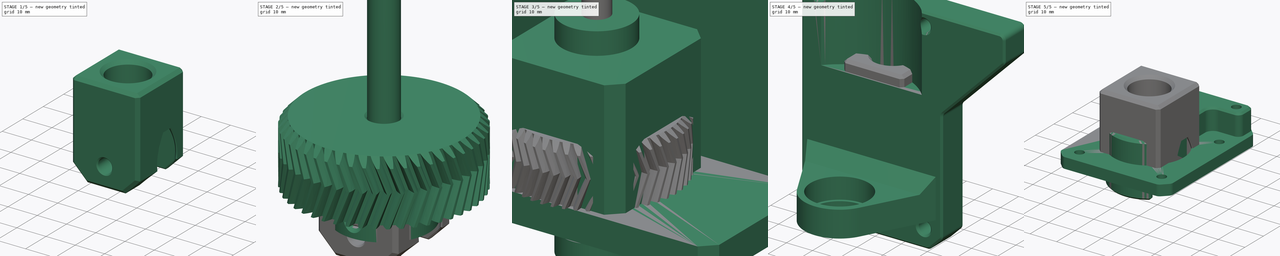
[diagram: build sequence overview — one tinted view per stage of 5, left to right]
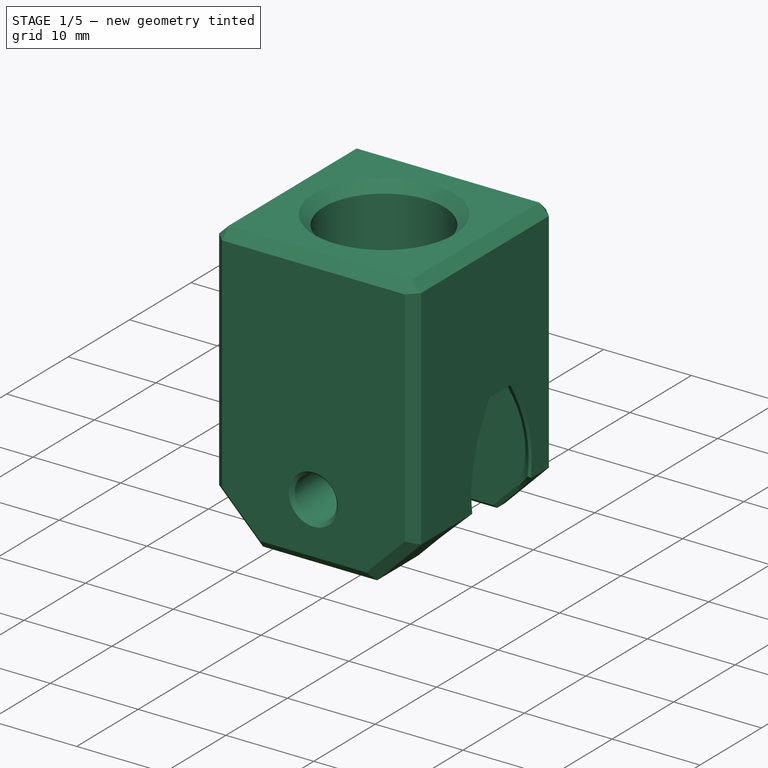
[diagram: stage 1 of 5 — iso view after this stage's code; geometry added in this stage tinted green]
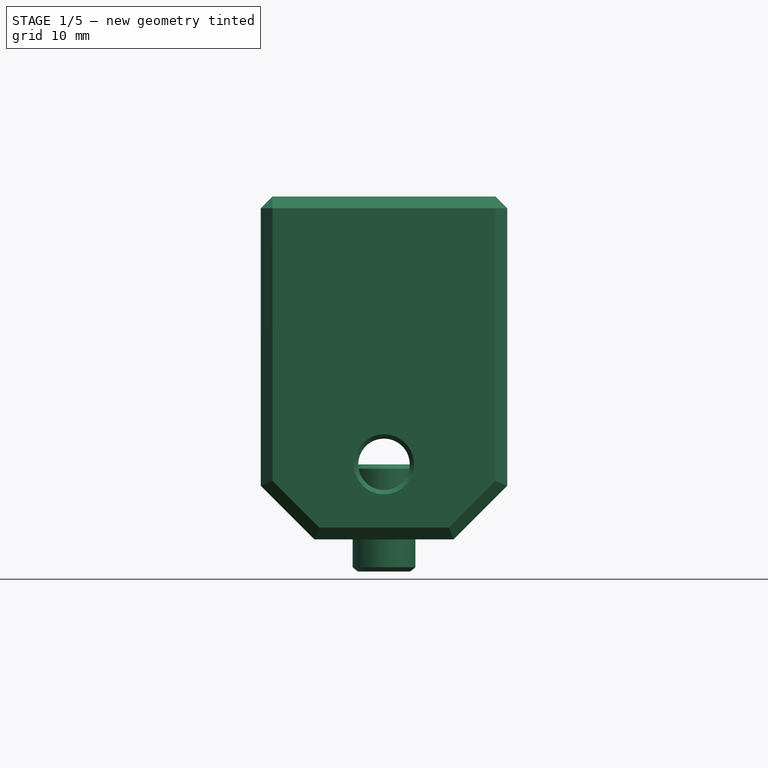
[diagram: stage 1 of 5 — front view after this stage's code; geometry added in this stage tinted green]
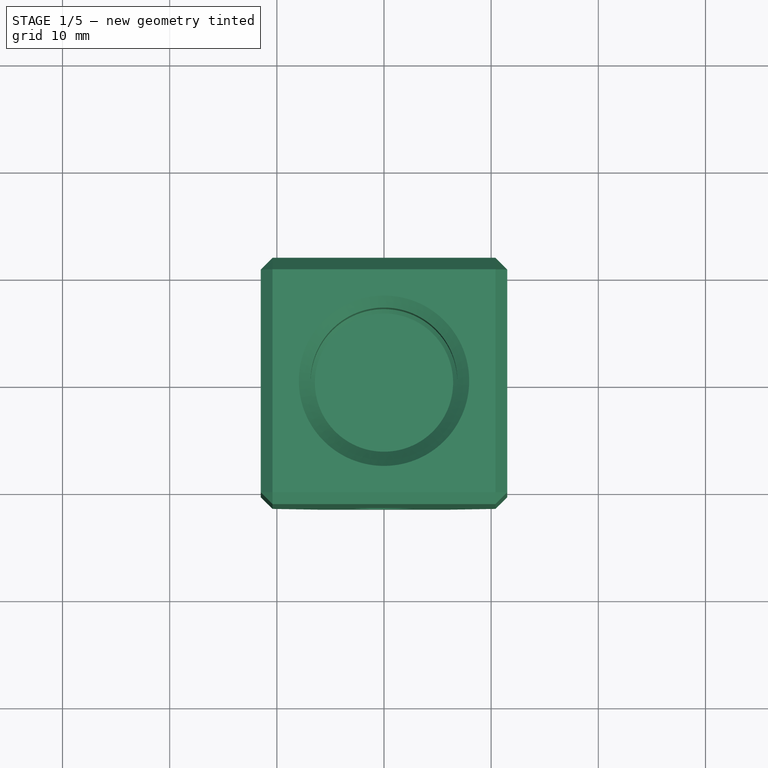
[diagram: stage 1 of 5 — top view after this stage's code; geometry added in this stage tinted green]
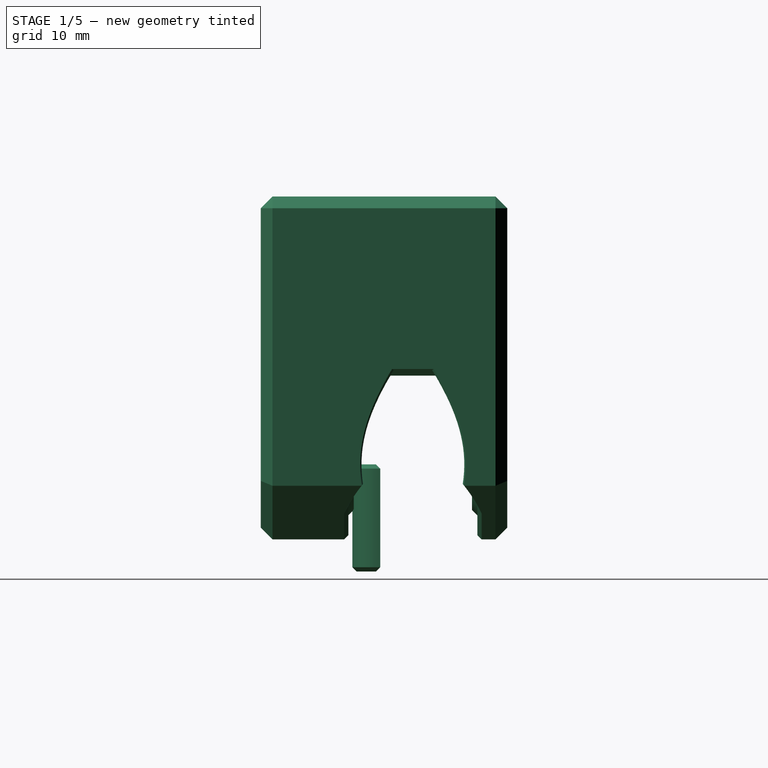
[diagram: stage 1 of 5 — right view after this stage's code; geometry added in this stage tinted green]
FCSTD DOCUMENT  (FreeCAD 0.21R33668 +26 (Git))
Label: hotplate-4th-axis
License: All rights reserved
LicenseURL: http://en.wikipedia.org/wiki/All_rights_reserved
objects: Sketcher::SketchObject×40, PartDesign::Pad×17, PartDesign::Chamfer×17, PartDesign::Body×14, PartDesign::Pocket×14, PartDesign::SubShapeBinder×6, PartDesign::Fillet×6, PartDesign::Hole×4, App::Part×4, PartDesign::Revolution×3, PartDesign::PolarPattern×3, Part::FeaturePython×2, PartDesign::FeaturePython×2, PartDesign::Groove×2, Part::Feature×2, PartDesign::FeatureBase×1, Part::Mirroring×1, App::DocumentObjectGroup×1, Spreadsheet::Sheet×1
note: 196 computed .brp shape members not serialized (recipe doc carries the construction recipe); baked Part::Feature solids carry a one-line shape summary decoded from their .brp

FEATURE [PartDesign::Body] Body007  label="X-acto knife"
  Group = -> [Sketch022,Pad009,Chamfer004]
  Origin = -> Origin013
  Tip = -> Chamfer004
FEATURE [Sketcher::SketchObject] Sketch023
  FullyConstrained = true
  MapMode = 5
  Support = -> [XY_Plane014]
  sketch-geometry (2):
    g0: ArcOfCircle CenterX=0 CenterY=0 CenterZ=0 NormalX=0 NormalY=0 NormalZ=1 AngleXU=0 Radius=2.95 StartAngle=3.26052 EndAngle=6.16426
    g1: LineSegment StartX=-2.92916 StartY=-0.35 StartZ=0 EndX=2.92916 EndY=-0.35 EndZ=0
  constraints (6):
    c: Coincident(g0,g-1)
    c: Diameter(g0) = 5.9
    c: Coincident(g1,g0)
    c: Coincident(g1,g0)
    c: Horizontal(g1)
    c: DistanceY(g-1,g1) = -0.35
FEATURE [PartDesign::Pad] Pad010
  Direction = (0,0,1)
  Length = 10
  Length2 = 100
  Profile = -> Sketch023
  Reversed = true
  Type = 0
FEATURE [PartDesign::Chamfer] Chamfer005
  Angle = 45
  Base = -> Pad010 [Face3,Face4]
  BaseFeature = -> Pad010
  ChamferType = 0
  FlipDirection = false
  Size = 0.4
  Size2 = 1
  SupportTransform = false
  UseAllEdges = false
FEATURE [PartDesign::Body] Body010  label="Carrier plate"
  Group = -> [Sketch025,Pad012,Chamfer006,Fillet,Chamfer007,Sketch030,Pocket007,Sketch031,Pad016,Sketch032,Pocket008,Chamfer008,Sketch033,Hole003,Sketch034,Pocket009,Fillet005,Chamfer011]
  Origin = -> Origin
  Placement = pos=(0,-2.6,0) rot=(0,0,1;0rad)
  Tip = -> Chamfer011
FEATURE [Spreadsheet::Sheet] Spreadsheet
  cells = A2='To do:; A3='Fix tolerances bearing holes; A4='Remove two holes in motor plate?; A5='Convert design to timing belt?; A6='Make test with eccentric bearing vibration motor
FEATURE [Part::Feature] Body016  label="Openbuilds v-wheel - with trimmed V profile001"
  Placement = pos=(0,2.69,0) rot=(0,0,1;1.5708rad)
  shape: bbox 23.9 x 10.23 x 23.9 mm, 25 faces (baked)
FEATURE [Sketcher::SketchObject] Sketch035
  FullyConstrained = true
  MapMode = 5
  Placement = pos=(0,0,0) rot=(1,0,0;1.5708rad)
  Support = -> [XZ_Plane020]
  sketch-geometry (4):
    g0: LineSegment StartX=-11.5 StartY=-7 StartZ=0 EndX=11.5 EndY=-7 EndZ=0
    g1: LineSegment StartX=11.5 StartY=-7 StartZ=0 EndX=11.5 EndY=25 EndZ=0
    g2: LineSegment StartX=11.5 StartY=25 StartZ=0 EndX=-11.5 EndY=25 EndZ=0
    g3: LineSegment StartX=-11.5 StartY=25 StartZ=0 EndX=-11.5 EndY=-7 EndZ=0
  constraints (11):
    c: Coincident(g0,g1)
    c: Coincident(g1,g2)
    c: Coincident(g2,g3)
    c: Coincident(g3,g0)
    c: Horizontal(g0)
    c: Vertical(g1)
    c: Vertical(g3)
    c: Symmetric(g2,g1,g-2)
    c: Distance(g2) = 23  'width'
    c: DistanceY(g-1,g0) = -7
    c: DistanceY(g-1,g1) = 25
FEATURE [PartDesign::Pad] Pad017
  Direction = (0,-1,2e-16)
  Length = 23
  Length2 = 10
  Midplane = true
  Placement = pos=(0,0,0) rot=(1,0,0;1.5708rad)
  Profile = -> Sketch035
  ReferenceAxis = -> Sketch035 [N_Axis]
  Type = 0
  expr: Length = Sketch035.Constraints.width
FEATURE [PartDesign::Chamfer] Chamfer012
  Angle = 45
  Base = -> Pad017 [Edge2,Edge1]
  BaseFeature = -> Pad017
  ChamferType = 0
  FlipDirection = false
  Placement = pos=(0,0,0) rot=(1,0,0;1.5708rad)
  Size = 5
  Size2 = 1
  SupportTransform = false
  UseAllEdges = false
FEATURE [Sketcher::SketchObject] Sketch036
  FullyConstrained = true
  MapMode = 5
  Placement = pos=(0,5.6e-15,25) rot=(0,0,1;3.14159rad)
  Support = -> [Chamfer012]
  sketch-geometry (1):
    g0: Circle CenterX=0 CenterY=0 CenterZ=0 NormalX=0 NormalY=0 NormalZ=1 AngleXU=0 Radius=6.85
  constraints (2):
    c: Coincident(g0,g-1)
    c: Diameter(g0) = 13.7
FEATURE [PartDesign::Pocket] Pocket010
  BaseFeature = -> Chamfer012
  Direction = (0,-2e-16,-1)
  Length = 10
  Length2 = 5
  Placement = pos=(0,0,0) rot=(1,0,0;1.5708rad)
  Profile = -> Sketch036
  ReferenceAxis = -> Sketch036 [N_Axis]
  Type = 0
FEATURE [Sketcher::SketchObject] Sketch037
  FullyConstrained = true
  MapMode = 5
  Placement = pos=(0,0,0) rot=(1,0,0;1.5708rad)
  Support = -> [XZ_Plane020]
  sketch-geometry (1):
    g0: Circle CenterX=0 CenterY=0 CenterZ=0 NormalX=0 NormalY=0 NormalZ=1 AngleXU=0 Radius=12.5
  constraints (2):
    c: Coincident(g0,g-1)
    c: Diameter(g0) = 25
FEATURE [PartDesign::Pocket] Pocket011
  BaseFeature = -> Pocket010
  Direction = (0,1,-2e-16)
  Length = 8.71
  Length2 = 3.32
  Placement = pos=(0,0,0) rot=(1,0,0;1.5708rad)
  Profile = -> Sketch037
  ReferenceAxis = -> Sketch037 [N_Axis]
  Type = 4
  expr: Length = 7.81 + 0.5 + 0.4
  expr: Length2 = 2.42 + 0.5 + 0.4
FEATURE [PartDesign::Chamfer] Chamfer013
  Angle = 45
  Base = -> Pocket011 [Edge29,Edge12]
  BaseFeature = -> Pocket011
  ChamferType = 0
  FlipDirection = false
  Placement = pos=(0,0,0) rot=(1,0,0;1.5708rad)
  Size = 2.5
  Size2 = 1
  SupportTransform = false
  UseAllEdges = false
FEATURE [Sketcher::SketchObject] Sketch038
  FullyConstrained = true
  MapMode = 5
  Placement = pos=(0,8.71,-1.9e-15) rot=(1,0,0;1.5708rad)
  Support = -> [Chamfer013]
  sketch-geometry (1):
    g0: Circle CenterX=0 CenterY=0 CenterZ=0 NormalX=0 NormalY=0 NormalZ=1 AngleXU=0 Radius=4.75
  constraints (2):
    c: Coincident(g0,g-1)
    c: Diameter(g0) = 9.5
FEATURE [PartDesign::Pad] Pad018
  BaseFeature = -> Chamfer013
  Direction = (0,-1,2e-16)
  Length = 0.5
  Length2 = 10
  Placement = pos=(0,0,0) rot=(1,0,0;1.5708rad)
  Profile = -> Sketch038
  ReferenceAxis = -> Sketch038 [N_Axis]
  TaperAngle = -45
  Type = 0
FEATURE [Sketcher::SketchObject] Sketch039
  FullyConstrained = true
  MapMode = 5
  Placement = pos=(0,-3.32,7e-16) rot=(-1,0,0;1.5708rad)
  Support = -> [Pad018]
  sketch-geometry (1):
    g0: Circle CenterX=0 CenterY=0 CenterZ=0 NormalX=0 NormalY=0 NormalZ=1 AngleXU=0 Radius=4.75
  constraints (2):
    c: Coincident(g0,g-1)
    c: Diameter(g0) = 9.5
FEATURE [PartDesign::Pad] Pad019
  BaseFeature = -> Pad018
  Direction = (0,1,-2e-16)
  Length = 0.5
  Length2 = 10
  Placement = pos=(0,0,0) rot=(1,0,0;1.5708rad)
  Profile = -> Sketch039
  ReferenceAxis = -> Sketch039 [N_Axis]
  TaperAngle = -45
  Type = 0
FEATURE [Sketcher::SketchObject] Sketch040
  FullyConstrained = true
  MapMode = 5
  Placement = pos=(0,8.21,-1.8e-15) rot=(1,0,0;1.5708rad)
  Support = -> [Pad019]
  sketch-geometry (1):
    g0: Circle CenterX=0 CenterY=0 CenterZ=0 NormalX=0 NormalY=0 NormalZ=1 AngleXU=0 Radius=2.55
  constraints (2):
    c: Coincident(g0,g-1)
    c: Diameter(g0) = 5.1
FEATURE [PartDesign::Pocket] Pocket012
  BaseFeature = -> Pad019
  Direction = (0,1,-2e-16)
  Length = 5
  Length2 = 5
  Placement = pos=(0,0,0) rot=(1,0,0;1.5708rad)
  Profile = -> Sketch040
  ReferenceAxis = -> Sketch040 [N_Axis]
  Type = 1
FEATURE [Sketcher::SketchObject] Sketch041
  FullyConstrained = true
  MapMode = 5
  Placement = pos=(0,-2.82,6e-16) rot=(-1,0,0;1.5708rad)
  Support = -> [Pocket012]
  sketch-geometry (1):
    g0: Circle CenterX=0 CenterY=0 CenterZ=0 NormalX=0 NormalY=0 NormalZ=1 AngleXU=0 Radius=2.4
  constraints (2):
    c: Coincident(g0,g-1)
    c: Diameter(g0) = 4.8
FEATURE [PartDesign::Pocket] Pocket013
  BaseFeature = -> Pocket012
  Direction = (0,-1,2e-16)
  Length = 5
  Length2 = 5
  Placement = pos=(0,0,0) rot=(1,0,0;1.5708rad)
  Profile = -> Sketch041
  ReferenceAxis = -> Sketch041 [N_Axis]
  Type = 1
FEATURE [PartDesign::Chamfer] Chamfer014
  Angle = 45
  Base = -> Pocket013 [Face11,Edge12,Edge19,Edge36,Edge8,Edge29,Edge34,Edge35,Edge3,Edge17,Edge18]
  BaseFeature = -> Pocket013
  ChamferType = 0
  FlipDirection = false
  Placement = pos=(0,0,0) rot=(1,0,0;1.5708rad)
  Size = 1.1
  Size2 = 1
  SupportTransform = false
  UseAllEdges = false
FEATURE [PartDesign::Chamfer] Chamfer015
  Angle = 45
  Base = -> Chamfer014 [Edge39,Edge10]
  BaseFeature = -> Chamfer014
  ChamferType = 0
  FlipDirection = false
  Placement = pos=(0,0,0) rot=(1,0,0;1.5708rad)
  Size = 4
  Size2 = 1
  SupportTransform = false
  UseAllEdges = false
FEATURE [PartDesign::Chamfer] Chamfer016
  Angle = 45
  Base = -> Chamfer015 [Edge5,Edge7,Edge1,Edge2,Edge28,Edge39,Edge61,Edge60,Edge29,Edge27,Edge44,Edge26,Edge14,Edge15,Edge17,Edge52,Edge53,Edge23,Edge16,Edge67,Edge100,Edge81,Edge95,Face45]
  BaseFeature = -> Chamfer015
  ChamferType = 0
  FlipDirection = false
  Placement = pos=(0,0,0) rot=(1,0,0;1.5708rad)
  Size = 0.4
  Size2 = 1
  SupportTransform = false
  UseAllEdges = false
FEATURE [PartDesign::Body] Body017  label="V - wheel holder"
  Group = -> [Sketch035,Pad017,Chamfer012,Sketch036,Pocket010,Sketch037,Pocket011,Sketch038,Chamfer013,Pad018,Sketch039,Pad019,Sketch040,Pocket012,Sketch041,Pocket013,Chamfer014,Chamfer015,Chamfer016]
  Origin = -> Origin020
  Tip = -> Chamfer016
FEATURE [App::Part] Part003  label="Creasing wheel"
  Group = -> [Body016,Body017]
  Origin = -> Origin019
  Placement = pos=(0,-32,-53) rot=(0,0,1;0rad)
  expr: .Placement.Base.y = <<Moving parts>>.Placement.Base.y
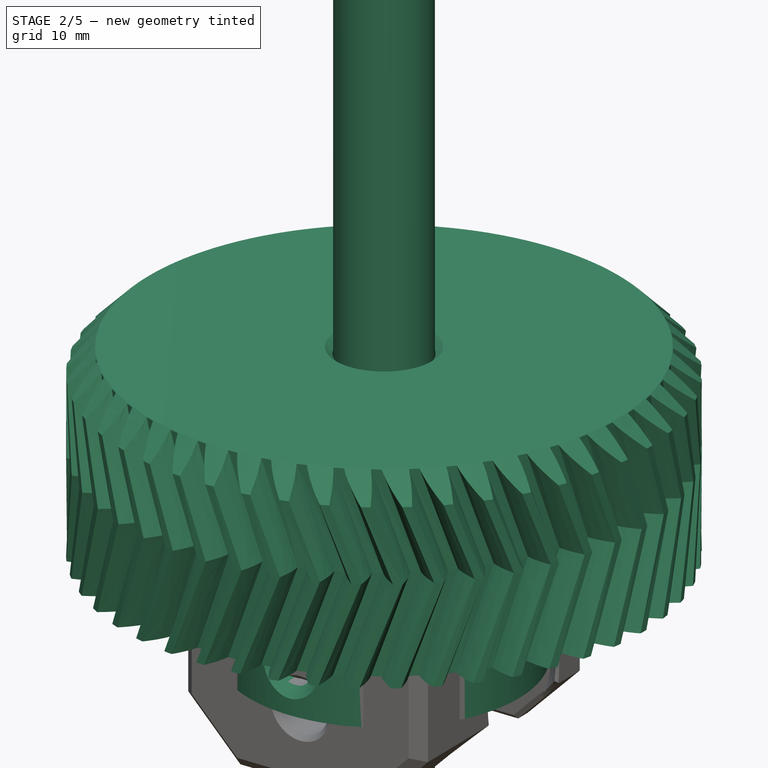
[diagram: stage 2 of 5 — iso view after this stage's code; geometry added in this stage tinted green]
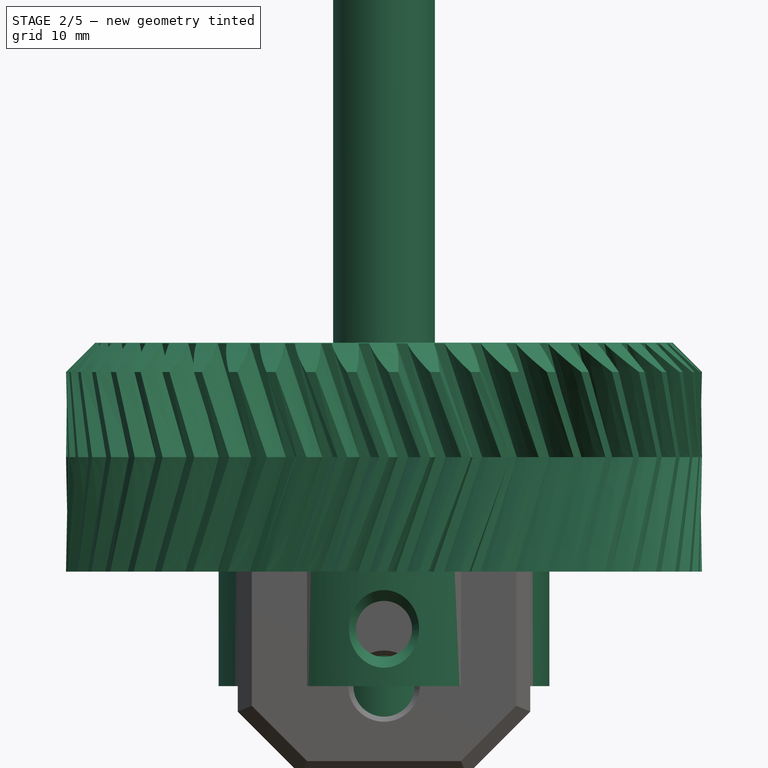
[diagram: stage 2 of 5 — front view after this stage's code; geometry added in this stage tinted green]
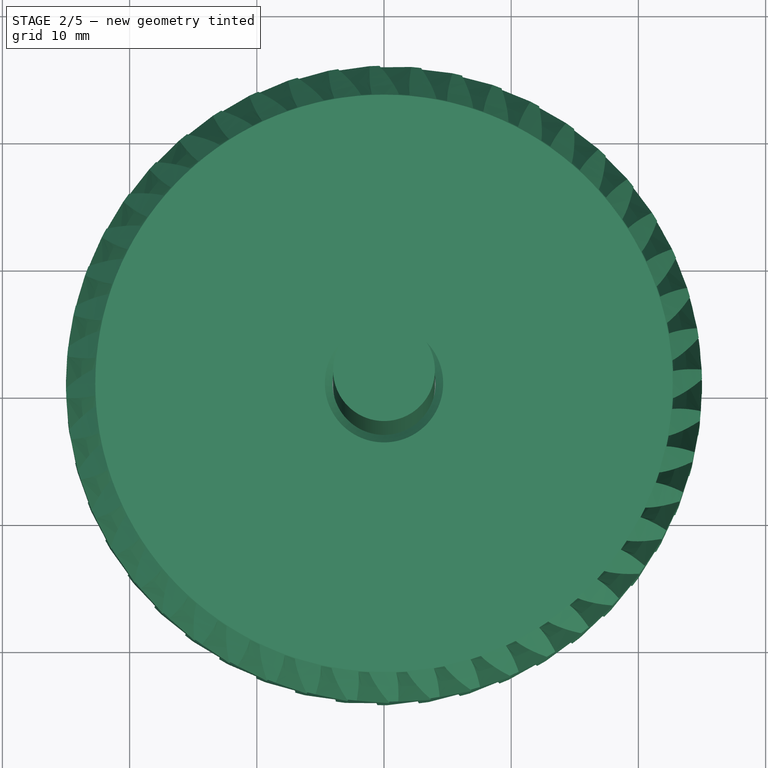
[diagram: stage 2 of 5 — top view after this stage's code; geometry added in this stage tinted green]
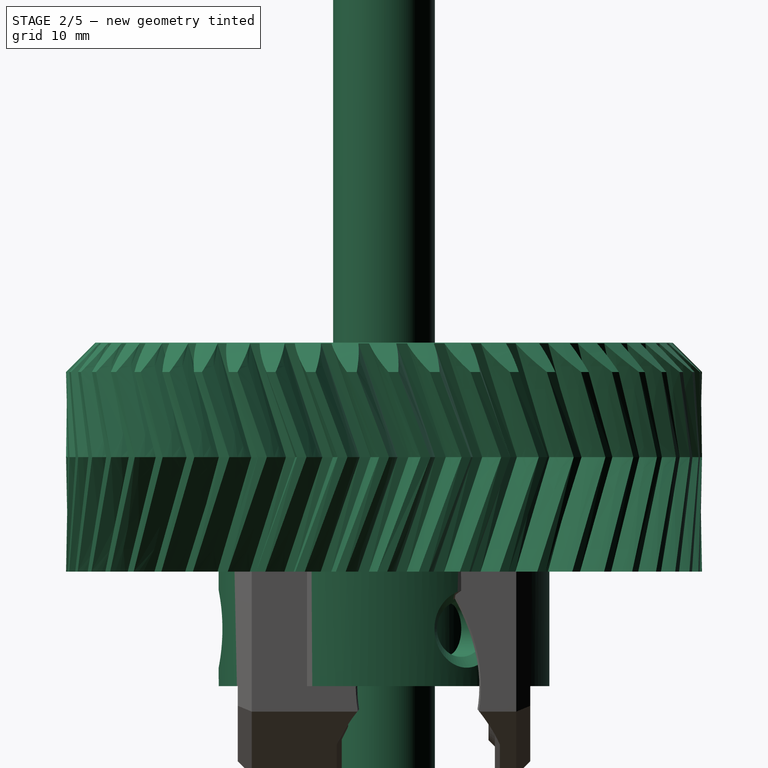
[diagram: stage 2 of 5 — right view after this stage's code; geometry added in this stage tinted green]
FEATURE [PartDesign::Body] Body  label="Nema17 stepper"
  Group = -> [Sketch,Pad,Chamfer,Sketch001,Pad001]
  Origin = -> Origin005
  Placement = pos=(30,0,54) rot=(0,0,1;0rad)
  Tip = -> Pad001
  expr: .Placement.Base.x = <<Pinion>>.Placement.Base[0]
FEATURE [PartDesign::FeaturePython] involutegear  # WARN: FeaturePython — macro-defined, semantics opaque (R4)
  AttacherType = Attacher::AttachEngine3D
  Placement = pos=(0,0,9) rot=(0,0,1;0rad)
  backlash = 0
  beta = -20
  clearance = 0.25
  da = 50
  df = 45.5
  double_helix = true
  dw = 48
  head = 0
  height = 18
  module = 1
  numpoints = 6
  pressure_angle = 20
  properties_from_tool = false
  reversed_backlash = false
  shift = 0
  simple = false
  teeth = 48
  transverse_pitch = 3.14159
  undercut = false
  version = 0.0.3
FEATURE [Sketcher::SketchObject] Sketch011
  FullyConstrained = false
  MapMode = 5
  Placement = pos=(0,0,0) rot=(1,0,0;1.5708rad)
  Support = -> [XZ_Plane010]
  sketch-geometry (7):
    g0: LineSegment StartX=0 StartY=86.0039 StartZ=0 EndX=4 EndY=86.0039 EndZ=0
    g1: LineSegment StartX=4 StartY=86.0039 StartZ=0 EndX=4 EndY=-13.9961 EndZ=0
    g2: LineSegment StartX=4 StartY=-13.9961 StartZ=0 EndX=6.11322 EndY=-13.9961 EndZ=0
    g3: LineSegment StartX=6.11322 StartY=-13.9961 StartZ=0 EndX=6.11322 EndY=-33.1784 EndZ=0
    g4: LineSegment StartX=6.11322 StartY=-33.1784 StartZ=0 EndX=5.31061 EndY=-33.1784 EndZ=0
    g5: LineSegment StartX=5.31061 StartY=-33.1784 StartZ=0 EndX=0 EndY=-17.1225 EndZ=0
    g6: LineSegment StartX=0 StartY=-17.1225 StartZ=0 EndX=0 EndY=86.0039 EndZ=0
  constraints (16):
    c: PointOnObject(g0,g-2)
    c: Horizontal(g0)
    c: Coincident(g0,g1)
    c: Vertical(g1)
    c: Coincident(g1,g2)
    c: Coincident(g2,g3)
    c: Vertical(g3)
    c: Coincident(g3,g4)
    c: Horizontal(g4)
    c: Coincident(g4,g5)
    c: PointOnObject(g5,g-2)
    c: Coincident(g5,g6)
    c: Coincident(g6,g0)
    c: Distance(g0) = 4
    c: Horizontal(g2)
    c: Distance(g1) = 100
FEATURE [PartDesign::Revolution] Revolution
  Angle = 360
  Axis = (0,-2e-16,1)
  Base = (0,0,0)
  Placement = pos=(0,0,0) rot=(1,0,0;1.5708rad)
  Profile = -> Sketch011
  ReferenceAxis = -> Sketch011 [V_Axis]
  Reversed = true
FEATURE [PartDesign::Body] Body005  label="ER11 spindle shaft extension"
  Group = -> [Sketch011,Revolution]
  Origin = -> Origin010
  Tip = -> Revolution
FEATURE [PartDesign::Pad] Pad008
  BaseFeature = -> involutegear
  Direction = (0,0,1)
  Length = 9
  Length2 = 100
  Placement = pos=(0,0,9) rot=(0,0,1;0rad)
  Profile = -> Sketch002
  Type = 0
FEATURE [Sketcher::SketchObject] Sketch012
  FullyConstrained = false
  MapMode = 5
  Placement = pos=(0,0,0) rot=(1,0,0;1.5708rad)
  Support = -> [XZ_Plane011]
  sketch-geometry (6):
    g0: LineSegment StartX=4 StartY=0 StartZ=0 EndX=4 EndY=2.04052 EndZ=0
    g1: LineSegment StartX=4 StartY=2.04052 StartZ=0 EndX=7.08463 EndY=2.04052 EndZ=0
    g2: LineSegment StartX=7.08463 StartY=2.04052 StartZ=0 EndX=7.08463 EndY=14 EndZ=0
    g3: LineSegment StartX=7.08463 StartY=14 StartZ=0 EndX=9 EndY=14 EndZ=0
    g4: LineSegment StartX=9 StartY=14 StartZ=0 EndX=9 EndY=0 EndZ=0
    g5: LineSegment StartX=9 StartY=0 StartZ=0 EndX=4 EndY=0 EndZ=0
  constraints (16):
    c: PointOnObject(g0,g-1)
    c: Vertical(g0)
    c: Coincident(g0,g1)
    c: Coincident(g1,g2)
    c: Vertical(g2)
    c: Coincident(g2,g3)
    c: Horizontal(g3)
    c: Coincident(g3,g4)
    c: PointOnObject(g4,g-1)
    c: Vertical(g4)
    c: Coincident(g4,g5)
    c: Coincident(g5,g0)
    c: DistanceX(g-2,g0) = 4
    c: Horizontal(g1)
    c: DistanceX(g-2,g4) = 9
    c: DistanceY(g-1,g3) = 14
FEATURE [PartDesign::Revolution] Revolution001
  Angle = 360
  Axis = (0,-2e-16,1)
  Base = (0,0,0)
  Placement = pos=(0,0,0) rot=(1,0,0;1.5708rad)
  Profile = -> Sketch012
  ReferenceAxis = -> Sketch012 [V_Axis]
  Reversed = true
FEATURE [Sketcher::SketchObject] Sketch013
  FullyConstrained = false
  MapMode = 5
  Placement = pos=(0,0,0) rot=(1,0,0;1.5708rad)
  Support = -> [XZ_Plane011]
  sketch-geometry (4):
    g0: ArcOfCircle CenterX=10.122 CenterY=6.42531 CenterZ=0 NormalX=0 NormalY=0 NormalZ=1 AngleXU=0 Radius=1.80607 StartAngle=0 EndAngle=3.14159
    g1: ArcOfCircle CenterX=10.122 CenterY=-3.08244 CenterZ=0 NormalX=0 NormalY=0 NormalZ=1 AngleXU=0 Radius=1.80607 StartAngle=3.14159 EndAngle=6.28319
    g2: LineSegment StartX=8.31591 StartY=6.42531 StartZ=0 EndX=8.31591 EndY=-3.08244 EndZ=0
    g3: LineSegment StartX=11.928 StartY=6.42531 StartZ=0 EndX=11.928 EndY=-3.08244 EndZ=0
  constraints (6):
    c: Tangent(g0,g3) = 1.5708
    c: Tangent(g0,g2) = -1.5708
    c: Tangent(g2,g1) = -1.5708
    c: Tangent(g3,g1) = 1.5708
    c: Vertical(g2)
    c: Equal(g0,g1)
FEATURE [PartDesign::Pocket] Pocket003
  BaseFeature = -> Revolution001
  Direction = (0,1,2e-16)
  Length = 20
  Length2 = 100
  Midplane = true
  Placement = pos=(0,0,0) rot=(1,0,0;1.5708rad)
  Profile = -> Sketch013
  Type = 0
FEATURE [PartDesign::PolarPattern] PolarPattern
  Angle = 360
  Axis = -> Z_Axis011
  BaseFeature = -> Pocket003
  Occurrences = 6
  Originals = -> [Pocket003]
  Placement = pos=(0,0,0) rot=(1,0,0;1.5708rad)
FEATURE [PartDesign::Body] Body006  label="ER11 Nut"
  Group = -> [Sketch012,Revolution001,Sketch013,Pocket003,PolarPattern]
  Origin = -> Origin011
  Placement = pos=(0,0,-34) rot=(0,0,1;0rad)
  Tip = -> PolarPattern
FEATURE [Sketcher::SketchObject] Sketch014
  FullyConstrained = true
  MapMode = 5
  Placement = pos=(0,0,0) rot=(1,0,0;1.5708rad)
  Support = -> [XZ_Plane006]
  sketch-geometry (6):
    g0: LineSegment StartX=0 StartY=0 StartZ=0 EndX=4.65 EndY=0 EndZ=0
    g1: LineSegment StartX=4.65 StartY=0 StartZ=0 EndX=4.05 EndY=0.6 EndZ=0
    g2: LineSegment StartX=4.05 StartY=0.6 StartZ=0 EndX=4.05 EndY=26.4 EndZ=0
    g3: LineSegment StartX=4.05 StartY=26.4 StartZ=0 EndX=5.65 EndY=28 EndZ=0
    g4: LineSegment StartX=5.65 StartY=28 StartZ=0 EndX=0 EndY=28 EndZ=0
    g5: LineSegment StartX=0 StartY=28 StartZ=0 EndX=0 EndY=0 EndZ=0
  constraints (17):
    c: Coincident(g-1,g0)
    c: PointOnObject(g0,g-1)
    c: Coincident(g0,g1)
    c: Coincident(g1,g2)
    c: Vertical(g2)
    c: Coincident(g2,g3)
    c: Coincident(g3,g4)
    c: PointOnObject(g4,g-2)
    c: Horizontal(g4)
    c: Coincident(g4,g5)
    c: Coincident(g5,g0)
    c: Angle(g-1,g3) = 0.785398
    c: Angle(g1,g-1) = 0.785398
    c: DistanceX(g-2,g1) = 4.05
    c: DistanceY(g-1,g4) = 28
    c: DistanceX(g1,g0) = 0.6
    c: DistanceX(g2,g3) = 1.6
FEATURE [PartDesign::Groove] Groove
  Angle = 360
  Axis = (0,-2e-16,1)
  Base = (0,0,0)
  BaseFeature = -> Pad008
  Placement = pos=(0,0,9) rot=(0,0,1;0rad)
  Profile = -> Sketch014
  ReferenceAxis = -> Sketch014 [V_Axis]
FEATURE [Sketcher::SketchObject] Sketch015
  AttachmentOffset = pos=(0,0,13) rot=(0,0,1;0rad)
  FullyConstrained = true
  MapMode = 5
  Placement = pos=(0,-13,-2.9e-15) rot=(1,0,0;1.5708rad)
  Support = -> [XZ_Plane006]
  sketch-geometry (1):
    g0: Circle CenterX=0 CenterY=4.5 CenterZ=0 NormalX=0 NormalY=0 NormalZ=1 AngleXU=0 Radius=2.2
  constraints (3):
    c: PointOnObject(g0,g-2)
    c: Diameter(g0) = 4.4
    c: DistanceY(g-1,g0) = 4.5
FEATURE [PartDesign::Hole] Hole
  BaseFeature = -> Groove
  CustomThreadClearance = 0
  Depth = 13
  DepthType = 0
  Diameter = 4.4
  DrillForDepth = false
  DrillPoint = 1
  DrillPointAngle = 118
  HoleCutCountersinkAngle = 90
  HoleCutCustomValues = false
  HoleCutDepth = 0
  HoleCutDiameter = 6.1
  HoleCutType = 2
  ModelThread = false
  Placement = pos=(0,0,9) rot=(0,0,1;0rad)
  Profile = -> Sketch015
  Tapered = false
  TaperedAngle = 90
  ThreadClass = 0
  ThreadDepth = 13
  ThreadDepthType = 0
  ThreadDirection = 0
  ThreadFit = 0
  ThreadSize = 0
  ThreadType = 0
  Threaded = false
  UseCustomThreadClearance = false
FEATURE [PartDesign::PolarPattern] PolarPattern001
  Angle = 360
  Axis = -> Z_Axis006
  BaseFeature = -> Hole
  Occurrences = 3
  Originals = -> [Hole]
  Placement = pos=(0,0,9) rot=(0,0,1;0rad)
FEATURE [Sketcher::SketchObject] Sketch016
  FullyConstrained = false
  MapMode = 5
  Placement = pos=(0,0,0) rot=(1,0,0;1.5708rad)
  Support = -> [XZ_Plane006]
  sketch-geometry (3):
    g0: LineSegment StartX=-25.3598 StartY=28.0227 StartZ=0 EndX=-25.3598 EndY=24.3363 EndZ=0
    g1: LineSegment StartX=-25.3598 StartY=24.3363 StartZ=0 EndX=-21.6734 EndY=28.0227 EndZ=0
    g2: LineSegment StartX=-21.6734 StartY=28.0227 StartZ=0 EndX=-25.3598 EndY=28.0227 EndZ=0
  constraints (6):
    c: Vertical(g0)
    c: Coincident(g0,g1)
    c: Coincident(g1,g2)
    c: Coincident(g2,g0)
    c: Horizontal(g2)
    c: Angle(g2,g1) = 0.785398
FEATURE [PartDesign::Groove] Groove001
  Angle = 360
  Axis = (0,-2e-16,1)
  Base = (0,0,0)
  BaseFeature = -> PolarPattern001
  Placement = pos=(0,0,9) rot=(0,0,1;0rad)
  Profile = -> Sketch016
  ReferenceAxis = -> Sketch016 [V_Axis]
  Reversed = true
FEATURE [PartDesign::Body] Body002  label="Top bearing holder"
  Group = -> [Sketch005,Pad005,Binder,Binder001,Sketch006,Pocket,Sketch007,Pad006,Chamfer002,Chamfer003,Sketch020,Pocket005,Sketch021,Hole002]
  Origin = -> Origin007
  Placement = pos=(0,0,39) rot=(0,0,1;0rad)
  Tip = -> Hole002
FEATURE [Sketcher::SketchObject] Sketch022
  FullyConstrained = true
  MapMode = 5
  Placement = pos=(0,0,0) rot=(1,0,0;1.5708rad)
  Support = -> [XZ_Plane013]
  sketch-geometry (12):
    g0: LineSegment StartX=-2.9 StartY=0 StartZ=0 EndX=-2.9 EndY=-9.5 EndZ=0
    g1: LineSegment StartX=-2.9 StartY=-9.5 StartZ=0 EndX=-4 EndY=-15 EndZ=0
    g2: LineSegment StartX=-4 StartY=-15 StartZ=0 EndX=-4 EndY=-19.5 EndZ=0
    g3: LineSegment StartX=-4 StartY=-19.5 StartZ=0 EndX=4 EndY=-38.5 EndZ=0
    g4: LineSegment StartX=4 StartY=-38.5 StartZ=0 EndX=4 EndY=-15 EndZ=0
    g5: LineSegment StartX=4 StartY=-15 StartZ=0 EndX=2.9 EndY=-9.5 EndZ=0
    g6: LineSegment StartX=2.9 StartY=-9.5 StartZ=0 EndX=2.9 EndY=0 EndZ=0
    g7: LineSegment StartX=2.9 StartY=0 StartZ=0 EndX=-2.9 EndY=0 EndZ=0
    g8: ArcOfCircle CenterX=0 CenterY=-5.5 CenterZ=0 NormalX=0 NormalY=0 NormalZ=1 AngleXU=0 Radius=1.25 StartAngle=2.02e-14 EndAngle=3.14159
    g9: ArcOfCircle CenterX=2.82e-14 CenterY=-8 CenterZ=0 NormalX=0 NormalY=0 NormalZ=1 AngleXU=0 Radius=1.25 StartAngle=3.14159 EndAngle=6.28319
    g10: LineSegment StartX=-1.25 StartY=-5.5 StartZ=0 EndX=-1.25 EndY=-8 EndZ=0
    g11: LineSegment StartX=1.25 StartY=-5.5 StartZ=0 EndX=1.25 EndY=-8 EndZ=0
  constraints (31):
    c: Vertical(g0)
    c: Coincident(g0,g1)
    c: Coincident(g1,g2)
    c: Vertical(g2)
    c: Coincident(g2,g3)
    c: Coincident(g3,g4)
    c: Coincident(g4,g5)
    c: Coincident(g5,g6)
    c: Coincident(g6,g7)
    c: Coincident(g7,g0)
    c: Symmetric(g0,g5,g-2)
    c: Symmetric(g0,g6,g-2)
    c: PointOnObject(g6,g-1)
    c: Symmetric(g4,g1,g-2)
    c: Distance(g7) = 5.8
    c: DistanceY(g-1,g5) = -9.5
    c: Vertical(g4)
    c: DistanceY(g-1,g3) = -38.5
    c: Distance(g1,g4) = 8
    c: DistanceY(g-1,g4) = -15
    c: Distance(g2) = 4.5
    c: Tangent(g8,g11) = 1.5708
    c: Tangent(g8,g10) = -1.5708
    c: Tangent(g10,g9) = -1.5708
    c: Tangent(g11,g9) = 1.5708
    c: Vertical(g10)
    c: Equal(g8,g9)
    c: PointOnObject(g8,g-2)
    c: Diameter(g8) = 2.5
    c: DistanceY(g-1,g8) = -5.5
    c: Distance(g8,g9) = 2.5
FEATURE [PartDesign::Pad] Pad009
  Direction = (0,-1,-2e-16)
  Length = 0.6
  Length2 = 100
  Midplane = true
  Placement = pos=(0,0,0) rot=(1,0,0;1.5708rad)
  Profile = -> Sketch022
  Type = 0
FEATURE [PartDesign::Chamfer] Chamfer004
  Angle = 45
  Base = -> Pad009 [Edge13,Edge12]
  BaseFeature = -> Pad009
  ChamferType = 1
  FlipDirection = false
  Placement = pos=(0,0,0) rot=(1,0,0;1.5708rad)
  Size = 0.26
  Size2 = 1.4
  SupportTransform = false
  UseAllEdges = false
FEATURE [Sketcher::SketchObject] Sketch024
  FullyConstrained = true
  MapMode = 5
  Placement = pos=(0,-0.35,0) rot=(0,0.707107,0.707107;3.14159rad)
  Support = -> [Chamfer005]
  sketch-geometry (4):
    g0: ArcOfCircle CenterX=0 CenterY=-5.5 CenterZ=0 NormalX=0 NormalY=0 NormalZ=1 AngleXU=0 Radius=0.9 StartAngle=4e-16 EndAngle=3.14159
    g1: ArcOfCircle CenterX=0 CenterY=-8 CenterZ=0 NormalX=0 NormalY=0 NormalZ=1 AngleXU=0 Radius=0.9 StartAngle=3.14159 EndAngle=6.28319
    g2: LineSegment StartX=-0.9 StartY=-5.5 StartZ=0 EndX=-0.9 EndY=-8 EndZ=0
    g3: LineSegment StartX=0.9 StartY=-5.5 StartZ=0 EndX=0.9 EndY=-8 EndZ=0
  constraints (10):
    c: Tangent(g0,g3) = 1.5708
    c: Tangent(g0,g2) = -1.5708
    c: Tangent(g2,g1) = -1.5708
    c: Tangent(g3,g1) = 1.5708
    c: Vertical(g2)
    c: Equal(g0,g1)
    c: PointOnObject(g0,g-2)
    c: DistanceY(g-1,g0) = -5.5
    c: Distance(g0,g1) = 2.5
    c: Diameter(g0) = 1.8
FEATURE [PartDesign::Pad] Pad011
  BaseFeature = -> Chamfer005
  Direction = (0,1,-2e-16)
  Length = 0.2
  Length2 = 100
  Profile = -> Sketch024
  Type = 0
FEATURE [PartDesign::Body] Body008  label="Holder1"
  Group = -> [Sketch023,Pad010,Chamfer005,Sketch024,Pad011]
  Origin = -> Origin014
  Tip = -> Pad011
FEATURE [PartDesign::FeatureBase] Clone
  BaseFeature = -> Body008
FEATURE [PartDesign::Body] Body009
  Group = -> [Clone]
  Origin = -> Origin015
  Tip = -> Clone
FEATURE [Part::Mirroring] Part__Mirroring  label="Holder2"
  Base = (0,0,0)
  Normal = (0,1,0)
  Source = -> Body009
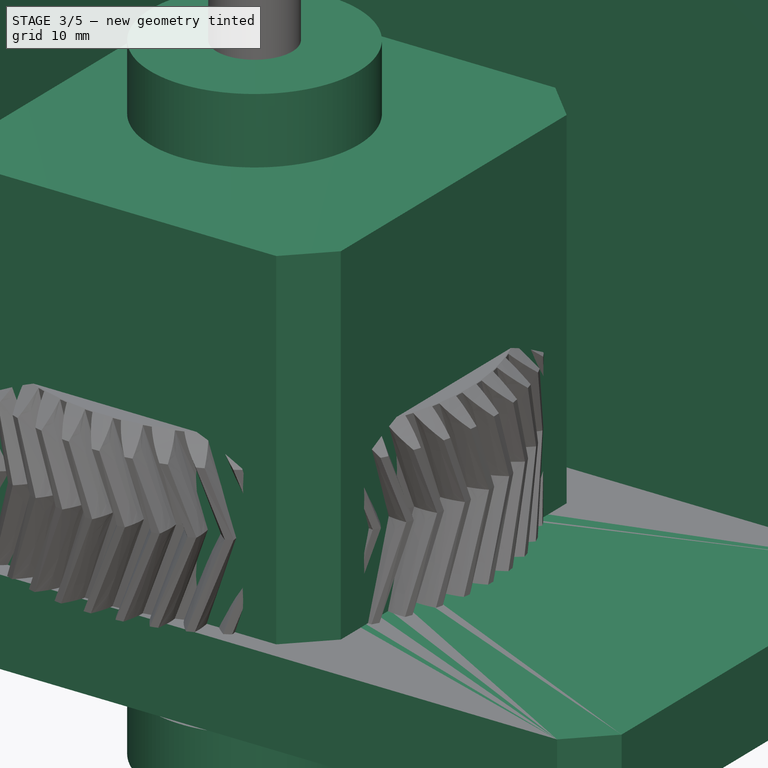
[diagram: stage 3 of 5 — iso view after this stage's code; geometry added in this stage tinted green]
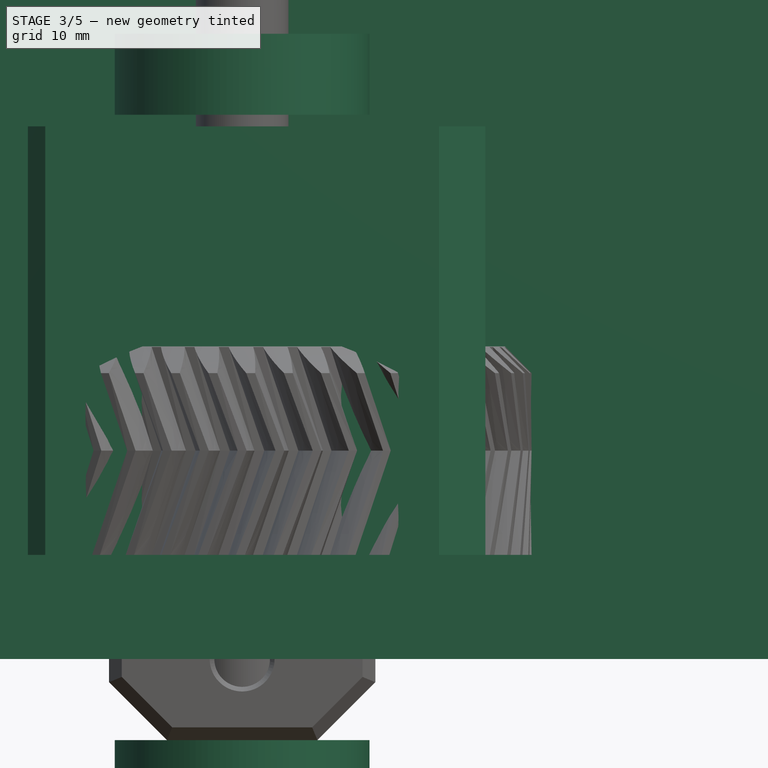
[diagram: stage 3 of 5 — front view after this stage's code; geometry added in this stage tinted green]
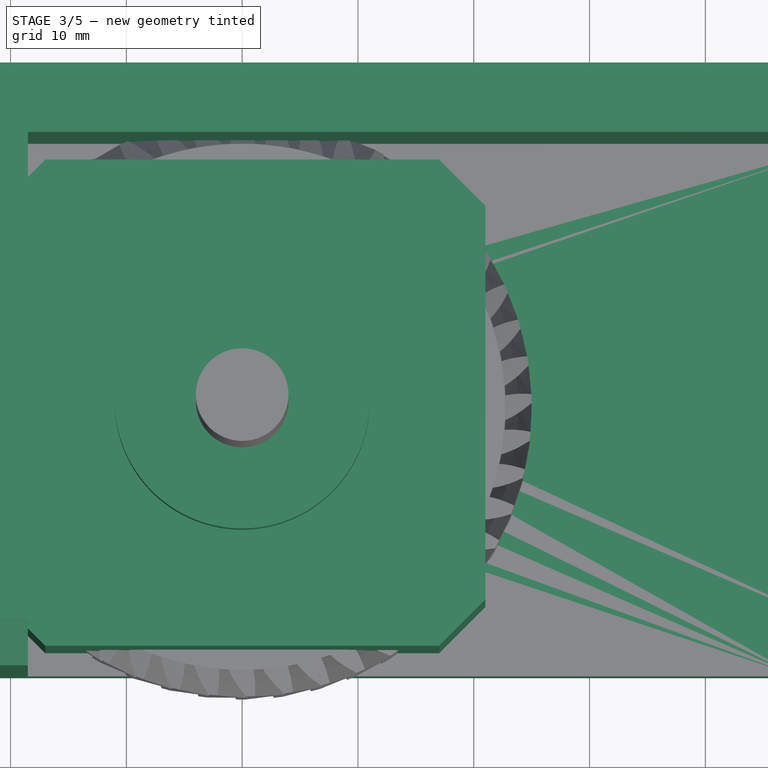
[diagram: stage 3 of 5 — top view after this stage's code; geometry added in this stage tinted green]
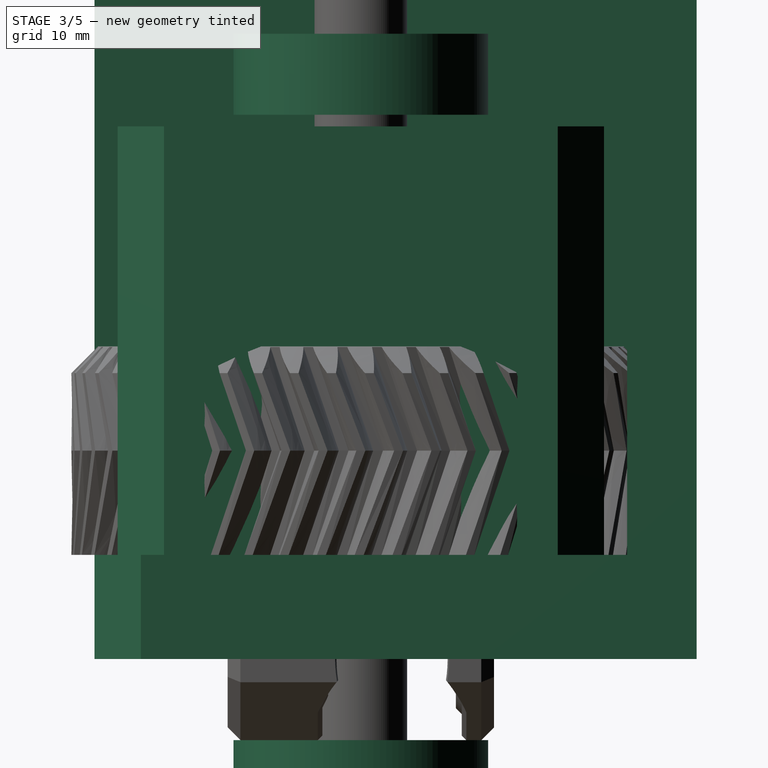
[diagram: stage 3 of 5 — right view after this stage's code; geometry added in this stage tinted green]
FEATURE [Part::FeaturePython] Tube  label="608 bearing"  # WARN: FeaturePython — macro-defined, semantics opaque (R4)
  AttacherType = Attacher::AttachEngine3D
  Height = 7
  InnerRadius = 4
  OuterRadius = 11
FEATURE [Sketcher::SketchObject] Sketch
  FullyConstrained = true
  MapMode = 5
  Support = -> [XY_Plane005]
  sketch-geometry (5):
    g0: LineSegment StartX=21 StartY=-21 StartZ=0 EndX=21 EndY=21 EndZ=0
    g1: LineSegment StartX=21 StartY=21 StartZ=0 EndX=-21 EndY=21 EndZ=0
    g2: LineSegment StartX=-21 StartY=21 StartZ=0 EndX=-21 EndY=-21 EndZ=0
    g3: LineSegment StartX=-21 StartY=-21 StartZ=0 EndX=21 EndY=-21 EndZ=0
    g4: Circle CenterX=0 CenterY=0 CenterZ=0 NormalX=0 NormalY=0 NormalZ=1 AngleXU=0 Radius=29.6985
  constraints (14):
    c: Coincident(g0,g1)
    c: Coincident(g1,g2)
    c: Coincident(g2,g3)
    c: Coincident(g3,g0)
    c: Equal(g0,g1)
    c: Equal(g0,g2)
    c: Equal(g0,g3)
    c: PointOnObject(g0,g4)
    c: PointOnObject(g1,g4)
    c: PointOnObject(g2,g4)
    c: PointOnObject(g3,g4)
    c: Coincident(g4,g-1)
    c: Horizontal(g3)
    c: Distance(g3) = 42
FEATURE [PartDesign::Pad] Pad
  Direction = (0,0,1)
  Length = 46
  Length2 = 100
  Profile = -> Sketch
  Type = 0
FEATURE [PartDesign::Chamfer] Chamfer
  Angle = 45
  Base = -> Pad [Edge5,Edge8,Edge1,Edge2]
  BaseFeature = -> Pad
  ChamferType = 0
  FlipDirection = false
  Size = 4
  Size2 = 1
  SupportTransform = false
  UseAllEdges = false
FEATURE [Sketcher::SketchObject] Sketch001
  FullyConstrained = true
  MapMode = 5
  Support = -> [XY_Plane005]
  sketch-geometry (1):
    g0: Circle CenterX=0 CenterY=0 CenterZ=0 NormalX=0 NormalY=0 NormalZ=1 AngleXU=0 Radius=2.5
  constraints (2):
    c: Coincident(g0,g-1)
    c: Diameter(g0) = 5
FEATURE [PartDesign::Pad] Pad001
  BaseFeature = -> Chamfer
  Direction = (0,0,1)
  Length = 20
  Length2 = 100
  Profile = -> Sketch001
  Reversed = true
  Type = 0
FEATURE [Part::FeaturePython] Array  label="Bearings"  # Draft array (typed FeaturePython)
  AlwaysSyncPlacement = false
  Angle = 360
  ArrayType = 0
  Axis = (0,0,1)
  Base = -> Tube
  Center = (0,0,0)
  Count = 2
  ExpandArray = false
  Fuse = false
  IntervalAxis = (0,0,0)
  IntervalX = (100,0,0)
  IntervalY = (0,100,0)
  IntervalZ = (0,0,61)
  NumberCircles = 3
  NumberPolar = 5
  NumberX = 1
  NumberY = 1
  NumberZ = 2
  Placement = pos=(0,0,-14) rot=(0,0,1;0rad)
  PlacementList = 2 placements: [(0,0,0),(0,0,61)]
  RadialDistance = 50
  ScaleList = (2) [(1,1,1),(1,1,1)]
  Symmetry = 1
  TangentialDistance = 25
  expr: .IntervalZ.z = 54 + 7
FEATURE [Sketcher::SketchObject] Sketch002
  FullyConstrained = true
  MapMode = 5
  Support = -> [XY_Plane006]
  expr: Constraints[1] = 8 + 18
  sketch-geometry (1):
    g0: Circle CenterX=0 CenterY=0 CenterZ=0 NormalX=0 NormalY=0 NormalZ=1 AngleXU=0 Radius=13
  constraints (2):
    c: Coincident(g0,g-1)
    c: Diameter(g0) = 26
FEATURE [PartDesign::SubShapeBinder] Binder
  BindCopyOnChange = 0
  BindMode = 0
  ClaimChildren = false
  Context = -> Part [Body002.Binder.]
  Fuse = false
  MakeFace = true
  OffsetFill = false
  OffsetIntersection = false
  OffsetJoinType = 0
  OffsetOpenResult = false
  PartialLoad = false
  Refine = true
  Relative = true
  _Version = 2
FEATURE [PartDesign::SubShapeBinder] Binder001
  BindCopyOnChange = 0
  BindMode = 0
  ClaimChildren = false
  Context = -> Part [Body002.Binder001.]
  Fuse = false
  MakeFace = true
  OffsetFill = false
  OffsetIntersection = false
  OffsetJoinType = 0
  OffsetOpenResult = false
  PartialLoad = false
  Refine = true
  Relative = true
  _Version = 2
FEATURE [Sketcher::SketchObject] Sketch005
  ExternalGeometry = -> [Binder001,Binder]
  FullyConstrained = true
  MapMode = 5
  Support = -> [XY_Plane007]
  sketch-geometry (5):
    g0: LineSegment StartX=-27.5 StartY=29 StartZ=0 EndX=52 EndY=29 EndZ=0
    g1: LineSegment StartX=52 StartY=29 StartZ=0 EndX=52 EndY=-23 EndZ=0
    g2: LineSegment StartX=52 StartY=-23 StartZ=0 EndX=-27.5 EndY=-23 EndZ=0
    g3: LineSegment StartX=-27.5 StartY=-23 StartZ=0 EndX=-27.5 EndY=29 EndZ=0
    g4: Circle CenterX=0 CenterY=0 CenterZ=0 NormalX=0 NormalY=0 NormalZ=1 AngleXU=0 Radius=10
  constraints (14):
    c: Coincident(g0,g1)
    c: Coincident(g1,g2)
    c: Coincident(g2,g3)
    c: Coincident(g3,g0)
    c: Horizontal(g0)
    c: Horizontal(g2)
    c: Vertical(g1)
    c: Vertical(g3)
    c: Coincident(g4,g-1)
    c: Diameter(g4) = 20
    c: PointOnObject(g0,g-4)
    c: PointOnObject(g2,g-3)
    c: DistanceX(g-2,g0) = 52
    c: DistanceY(g-1,g1) = -23
FEATURE [PartDesign::Pad] Pad005
  Direction = (0,0,1)
  Length = 9
  Length2 = 100
  Profile = -> Sketch005
  Type = 0
FEATURE [Sketcher::SketchObject] Sketch006
  FullyConstrained = true
  MapMode = 5
  Placement = pos=(0,0,0) rot=(1,0,0;3.14159rad)
  Support = -> [Pad005]
  sketch-geometry (1):
    g0: Circle CenterX=0 CenterY=0 CenterZ=0 NormalX=0 NormalY=0 NormalZ=1 AngleXU=0 Radius=11.25
  constraints (2):
    c: Coincident(g0,g-1)
    c: Diameter(g0) = 22.5
FEATURE [PartDesign::Pocket] Pocket
  BaseFeature = -> Pad005
  Direction = (0,0,1)
  Length = 7
  Length2 = 100
  Profile = -> Sketch006
  Type = 0
FEATURE [Sketcher::SketchObject] Sketch007
  ExternalGeometry = -> [Pocket]
  FullyConstrained = true
  MapMode = 5
  Placement = pos=(0,0,9) rot=(0,0,1;0rad)
  Support = -> [Pocket]
  sketch-geometry (6):
    g0: LineSegment StartX=-27.5 StartY=-23 StartZ=0 EndX=-18.5 EndY=-23 EndZ=0
    g1: LineSegment StartX=-27.5 StartY=29 StartZ=0 EndX=-27.5 EndY=-23 EndZ=0
    g2: LineSegment StartX=-18.5 StartY=23 StartZ=0 EndX=52 EndY=23 EndZ=0
    g3: LineSegment StartX=52 StartY=23 StartZ=0 EndX=52 EndY=29 EndZ=0
    g4: LineSegment StartX=52 StartY=29 StartZ=0 EndX=-27.5 EndY=29 EndZ=0
    g5: LineSegment StartX=-18.5 StartY=23 StartZ=0 EndX=-18.5 EndY=-23 EndZ=0
  constraints (16):
    c: Coincident(g1,g0)
    c: Horizontal(g0)
    c: Vertical(g1)
    c: Coincident(g0,g-4)
    c: Coincident(g2,g3)
    c: Coincident(g3,g4)
    c: Horizontal(g2)
    c: Horizontal(g4)
    c: Vertical(g3)
    c: Coincident(g3,g-3)
    c: Coincident(g4,g1)
    c: Coincident(g5,g2)
    c: Coincident(g5,g0)
    c: Vertical(g5)
    c: Distance(g0,g1) = 9
    c: Distance(g2,g4) = 6
FEATURE [PartDesign::Pad] Pad006
  BaseFeature = -> Pocket
  Direction = (0,0,1)
  Length = 59
  Length2 = 100
  Profile = -> Sketch007
  Refine = true
  Type = 0
FEATURE [PartDesign::Body] Body003  label="Bottom bearing holder"
  Group = -> [Binder002,Sketch008,Binder003,Pad007,Sketch009,Pocket001,Sketch010,Pocket002,Chamfer001]
  Origin = -> Origin008
  Tip = -> Chamfer001
FEATURE [PartDesign::Chamfer] Chamfer002
  Angle = 45
  Base = -> Pad006 [Edge20,Edge27,Edge17]
  BaseFeature = -> Pad006
  ChamferType = 0
  FlipDirection = false
  Size = 4
  Size2 = 1
  SupportTransform = false
  UseAllEdges = false
FEATURE [PartDesign::FeaturePython] involutegear001  # WARN: FeaturePython — macro-defined, semantics opaque (R4)
  AttacherType = Attacher::AttachEngine3D
  backlash = 0
  beta = 20
  clearance = 0.25
  da = 14
  df = 9.5
  double_helix = true
  dw = 12
  head = 0
  height = 20
  module = 1
  numpoints = 6
  pressure_angle = 20
  properties_from_tool = false
  reversed_backlash = false
  shift = 0
  simple = false
  teeth = 12
  transverse_pitch = 3.14159
  undercut = false
  version = 0.0.3
FEATURE [PartDesign::Body] Body001  label="Gear spindle"
  Group = -> [involutegear,Sketch002,Pad008,Sketch014,Groove,Sketch015,Hole,PolarPattern001,Sketch016,Groove001]
  Origin = -> Origin006
  Placement = pos=(0,0,19) rot=(0,0,1;0rad)
  Tip = -> Groove001
FEATURE [Sketcher::SketchObject] Sketch017
  AttachmentOffset = pos=(0,20,0) rot=(0,0,1;0rad)
  FullyConstrained = false
  MapMode = 5
  Placement = pos=(0,-4.4e-15,20) rot=(1,0,0;1.5708rad)
  Support = -> [XZ_Plane009]
  expr: .AttachmentOffset.Base.y = involutegear001.height
  expr: Constraints[12] = 2.5 + 9
  sketch-geometry (7):
    g0: LineSegment StartX=2.5 StartY=0 StartZ=0 EndX=10.7 EndY=0 EndZ=0
    g1: LineSegment StartX=10.7 StartY=0 StartZ=0 EndX=11.5 EndY=0.8 EndZ=0
    g2: LineSegment StartX=11.5 StartY=0.8 StartZ=0 EndX=11.5 EndY=6.2 EndZ=0
    g3: LineSegment StartX=11.5 StartY=6.2 StartZ=0 EndX=10.7 EndY=7 EndZ=0
    g4: LineSegment StartX=10.7 StartY=7 StartZ=0 EndX=3.3 EndY=7 EndZ=0
    g5: LineSegment StartX=3.3 StartY=7 StartZ=0 EndX=2.5 EndY=6.2 EndZ=0
    g6: LineSegment StartX=2.5 StartY=6.2 StartZ=0 EndX=2.5 EndY=0 EndZ=0
  constraints (20):
    c: PointOnObject(g0,g-1)
    c: Coincident(g0,g1)
    c: Coincident(g1,g2)
    c: Vertical(g2)
    c: Coincident(g2,g3)
    c: Coincident(g3,g4)
    c: Horizontal(g4)
    c: Angle(g3,g-1) = 0.785398
    c: Angle(g1,g-1) = 2.35619
    c: DistanceY(g0,g1) = 0.8
    c: Vertical(g0,g3)
    c: DistanceY(g-1,g4) = 7
    c: DistanceX(g-2,g1) = 11.5
    c: Coincident(g4,g5)
    c: Coincident(g5,g6)
    c: Vertical(g6)
    c: Coincident(g0,g6)
    c: Angle(g-2,g5) = 2.35619
    c: Horizontal(g5,g2)
    c: DistanceX(g-2,g5) = 2.5
FEATURE [PartDesign::Revolution] Revolution002
  Angle = 360
  Axis = (0,-2e-16,1)
  Base = (0,-4.4e-15,20)
  BaseFeature = -> involutegear001
  Profile = -> Sketch017
  ReferenceAxis = -> Sketch017 [V_Axis]
  Reversed = true
FEATURE [Sketcher::SketchObject] Sketch018
  AttachmentOffset = pos=(0,0,-1) rot=(0,0,1;0rad)
  FullyConstrained = true
  MapMode = 5
  Placement = pos=(0,0,-1) rot=(0,0,1;0rad)
  Support = -> [XY_Plane009]
  sketch-geometry (1):
    g0: Circle CenterX=0 CenterY=0 CenterZ=0 NormalX=0 NormalY=0 NormalZ=1 AngleXU=0 Radius=2.525
  constraints (2):
    c: Coincident(g0,g-1)
    c: Diameter(g0) = 5.05
FEATURE [PartDesign::Pocket] Pocket004
  BaseFeature = -> Revolution002
  Direction = (0,0,-1)
  Length = 5
  Length2 = 100
  Profile = -> Sketch018
  Reversed = true
  Type = 1
FEATURE [Sketcher::SketchObject] Sketch019
  AttachmentOffset = pos=(0,23.5,12) rot=(0,0,1;0rad)
  FullyConstrained = false
  MapMode = 5
  Placement = pos=(0,-12,23.5) rot=(1,0,0;1.5708rad)
  Support = -> [XZ_Plane009]
  expr: .AttachmentOffset.Base.y = involutegear001.height + 7 mm / 2
  sketch-geometry (1):
    g0: Circle CenterX=0 CenterY=0 CenterZ=0 NormalX=0 NormalY=0 NormalZ=1 AngleXU=0 Radius=2.55912
  constraints (1):
    c: Coincident(g0,g-1)
FEATURE [PartDesign::Hole] Hole001
  BaseFeature = -> Pocket004
  CustomThreadClearance = 0
  Depth = 12
  DepthType = 0
  Diameter = 4.4
  DrillForDepth = false
  DrillPoint = 1
  DrillPointAngle = 118
  HoleCutCountersinkAngle = 90
  HoleCutCustomValues = false
  HoleCutDepth = 0
  HoleCutDiameter = 7
  HoleCutType = 2
  ModelThread = false
  Profile = -> Sketch019
  Tapered = false
  TaperedAngle = 90
  ThreadClass = 0
  ThreadDepth = 12
  ThreadDepthType = 0
  ThreadDirection = 0
  ThreadFit = 0
  ThreadSize = 0
  ThreadType = 0
  Threaded = false
  UseCustomThreadClearance = false
FEATURE [PartDesign::PolarPattern] PolarPattern002
  Angle = 360
  Axis = -> Z_Axis009
  BaseFeature = -> Hole001
  Occurrences = 3
  Originals = -> [Hole001]
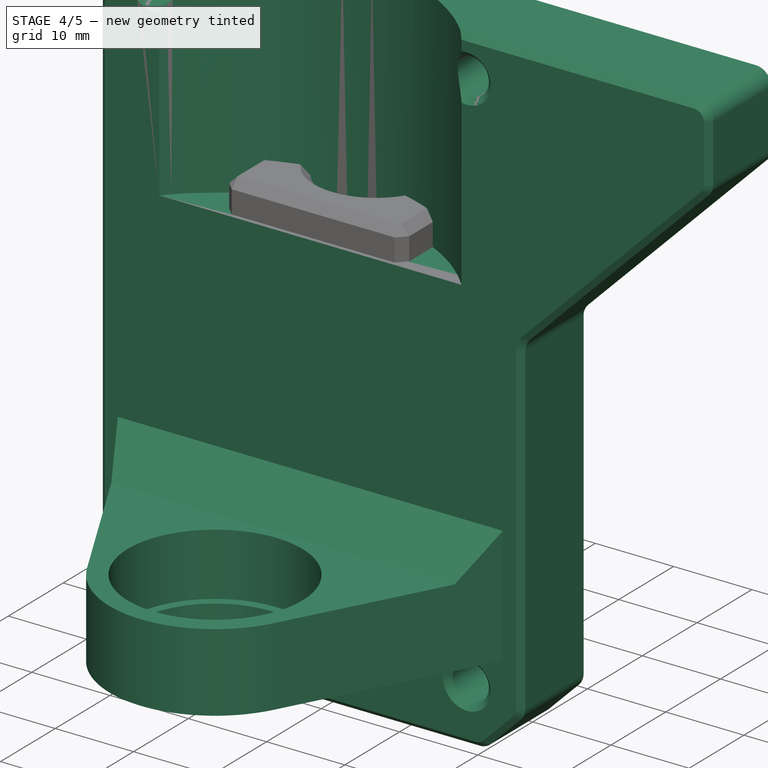
[diagram: stage 4 of 5 — iso view after this stage's code; geometry added in this stage tinted green]
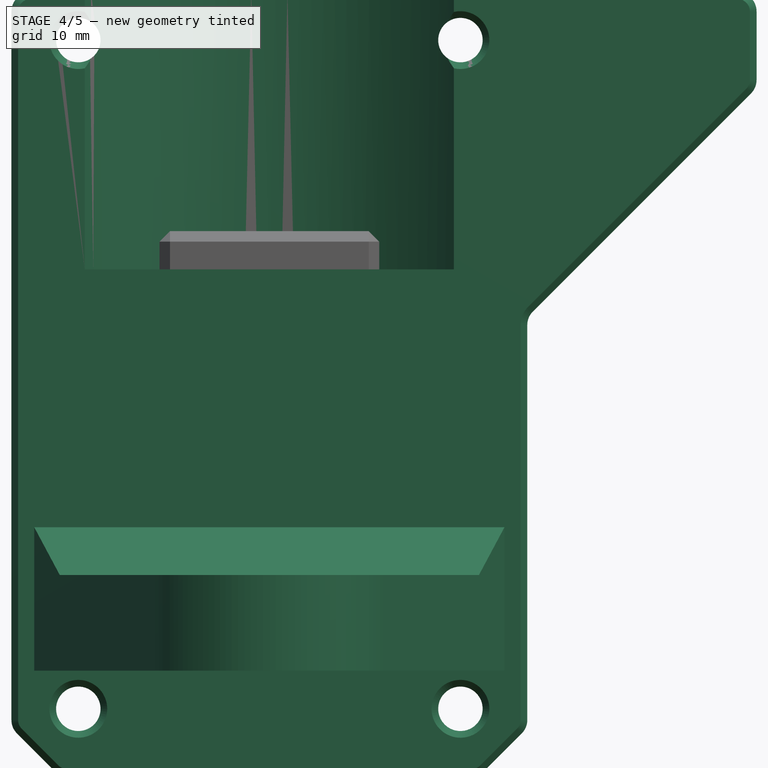
[diagram: stage 4 of 5 — front view after this stage's code; geometry added in this stage tinted green]
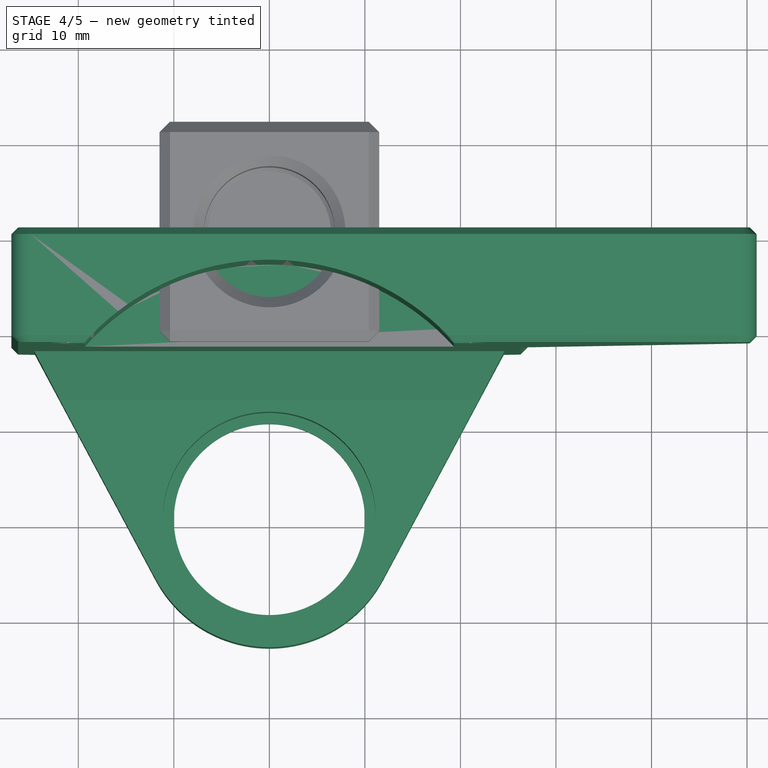
[diagram: stage 4 of 5 — top view after this stage's code; geometry added in this stage tinted green]
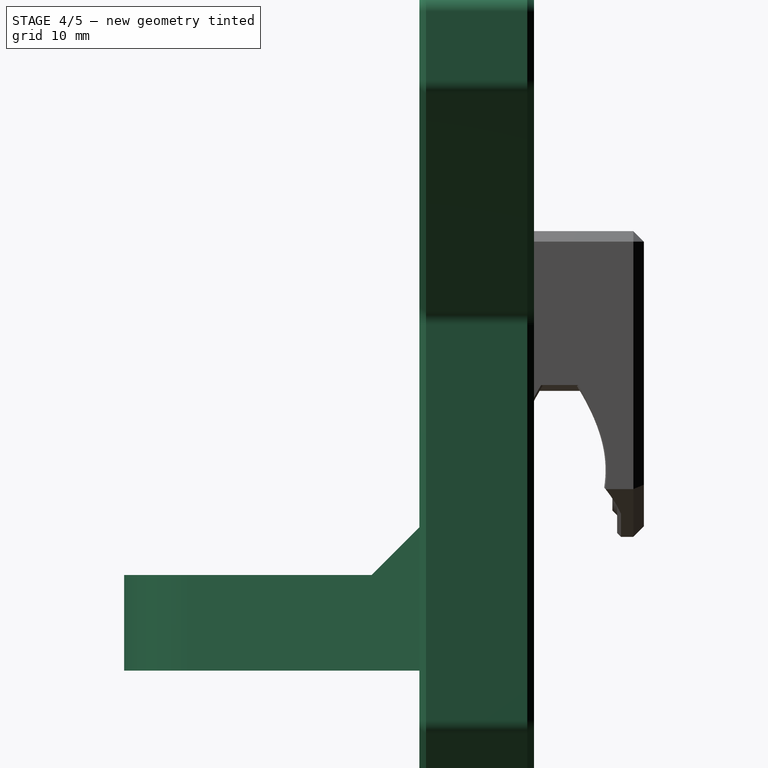
[diagram: stage 4 of 5 — right view after this stage's code; geometry added in this stage tinted green]
FEATURE [PartDesign::SubShapeBinder] Binder002
  BindCopyOnChange = 0
  BindMode = 0
  ClaimChildren = false
  Context = -> Part [Body003.Binder002.]
  Fuse = false
  MakeFace = true
  OffsetFill = false
  OffsetIntersection = false
  OffsetJoinType = 0
  OffsetOpenResult = false
  PartialLoad = false
  Refine = true
  Relative = true
  _Version = 2
FEATURE [PartDesign::SubShapeBinder] Binder003
  BindCopyOnChange = 0
  BindMode = 0
  ClaimChildren = false
  Context = -> Part [Body003.Binder003.]
  Fuse = false
  MakeFace = true
  OffsetFill = false
  OffsetIntersection = false
  OffsetJoinType = 0
  OffsetOpenResult = false
  PartialLoad = false
  Refine = true
  Relative = true
  _Version = 2
FEATURE [Sketcher::SketchObject] Sketch008
  ExternalGeometry = -> [Binder002,Binder003]
  FullyConstrained = true
  MapMode = 5
  Placement = pos=(0,29,0) rot=(1,0,0;1.5708rad)
  Support = -> [Binder002]
  sketch-geometry (6):
    g0: LineSegment StartX=37 StartY=0 StartZ=0 EndX=37 EndY=10 EndZ=0
    g1: LineSegment StartX=37 StartY=10 StartZ=0 EndX=-27.5 EndY=10 EndZ=0
    g2: LineSegment StartX=-27.5 StartY=10 StartZ=0 EndX=-27.5 EndY=22.25 EndZ=0
    g3: LineSegment StartX=-36 StartY=22.25 StartZ=0 EndX=-36 EndY=0 EndZ=0
    g4: LineSegment StartX=-36 StartY=0 StartZ=0 EndX=37 EndY=0 EndZ=0
    g5: LineSegment StartX=-36 StartY=22.25 StartZ=0 EndX=-27.5 EndY=22.25 EndZ=0
  constraints (18):
    c: PointOnObject(g0,g-1)
    c: Vertical(g0)
    c: Coincident(g0,g1)
    c: Horizontal(g1)
    c: Coincident(g1,g2)
    c: Vertical(g2)
    c: PointOnObject(g3,g-1)
    c: Vertical(g3)
    c: Coincident(g3,g4)
    c: Coincident(g4,g0)
    c: PointOnObject(g0,g-3)
    c: DistanceY(g-1,g0) = 10
    c: Horizontal(g5)
    c: Coincident(g3,g5)
    c: Coincident(g2,g5)
    c: Distance(g3,g-4) = 1
    c: Vertical(g3,g-4)
    c: Vertical(g-4,g2)
FEATURE [PartDesign::Pad] Pad007
  Direction = (0,-1,2e-16)
  Length = 50
  Length2 = 100
  Profile = -> Sketch008
  Type = 0
FEATURE [Sketcher::SketchObject] Sketch009
  FullyConstrained = true
  MapMode = 5
  Support = -> [XY_Plane008]
  sketch-geometry (1):
    g0: Circle CenterX=0 CenterY=0 CenterZ=0 NormalX=0 NormalY=0 NormalZ=1 AngleXU=0 Radius=10
  constraints (2):
    c: Coincident(g0,g-1)
    c: Diameter(g0) = 20
FEATURE [PartDesign::Pocket] Pocket001
  BaseFeature = -> Pad007
  Direction = (0,0,-1)
  Length = 5
  Length2 = 100
  Profile = -> Sketch009
  Reversed = true
  Type = 1
FEATURE [Sketcher::SketchObject] Sketch010
  AttachmentOffset = pos=(0,0,3) rot=(0,0,1;0rad)
  FullyConstrained = true
  MapMode = 5
  Placement = pos=(0,0,3) rot=(0,0,1;0rad)
  Support = -> [XY_Plane008]
  sketch-geometry (1):
    g0: Circle CenterX=0 CenterY=0 CenterZ=0 NormalX=0 NormalY=0 NormalZ=1 AngleXU=0 Radius=11.25
  constraints (2):
    c: Coincident(g0,g-1)
    c: Diameter(g0) = 22.5
FEATURE [PartDesign::Pocket] Pocket002
  BaseFeature = -> Pocket001
  Direction = (0,0,-1)
  Length = 5
  Length2 = 100
  Profile = -> Sketch010
  Reversed = true
  Type = 1
FEATURE [PartDesign::Chamfer] Chamfer001
  Angle = 45
  Base = -> Pocket002 [Edge7,Edge15,Edge2,Edge9,Edge10]
  BaseFeature = -> Pocket002
  ChamferType = 0
  FlipDirection = false
  Size = 4
  Size2 = 1
  SupportTransform = false
  UseAllEdges = false
FEATURE [PartDesign::Body] Body004  label="Pinion"
  Group = -> [involutegear001,Sketch017,Revolution002,Sketch018,Pocket004,Sketch019,Hole001,PolarPattern002]
  Origin = -> Origin009
  Placement = pos=(30,0,22) rot=(0,0,1;0rad)
  Tip = -> PolarPattern002
  expr: .Placement.Base.x = involutegear.dw / 2 + involutegear001.dw / 2
FEATURE [PartDesign::Chamfer] Chamfer003
  Angle = 45
  Base = -> Chamfer002 [Edge30]
  BaseFeature = -> Chamfer002
  ChamferType = 0
  FlipDirection = false
  Size = 4
  Size2 = 1
  SupportTransform = false
  UseAllEdges = false
FEATURE [Sketcher::SketchObject] Sketch020
  FullyConstrained = true
  MapMode = 5
  Support = -> [XY_Plane007]
  expr: Constraints[2] = <<Nema17 stepper>>.Placement.Base[0]
  sketch-geometry (1):
    g0: Circle CenterX=30 CenterY=0 CenterZ=0 NormalX=0 NormalY=0 NormalZ=1 AngleXU=0 Radius=15
  constraints (3):
    c: PointOnObject(g0,g-1)
    c: Diameter(g0) = 30
    c: DistanceX(g-2,g0) = 30
FEATURE [PartDesign::Pocket] Pocket005
  BaseFeature = -> Chamfer003
  Direction = (0,0,-1)
  Length = 5
  Length2 = 100
  Profile = -> Sketch020
  Reversed = true
  Type = 1
FEATURE [Sketcher::SketchObject] Sketch021
  FullyConstrained = true
  MapMode = 5
  Support = -> [XY_Plane007]
  expr: Constraints[14] = <<Nema17 stepper>>.Placement.Base[0]
  sketch-geometry (9):
    g0: LineSegment StartX=45.5 StartY=-15.5 StartZ=0 EndX=45.5 EndY=15.5 EndZ=0
    g1: LineSegment StartX=45.5 StartY=15.5 StartZ=0 EndX=14.5 EndY=15.5 EndZ=0
    g2: LineSegment StartX=14.5 StartY=15.5 StartZ=0 EndX=14.5 EndY=-15.5 EndZ=0
    g3: LineSegment StartX=14.5 StartY=-15.5 StartZ=0 EndX=45.5 EndY=-15.5 EndZ=0
    g4: Circle CenterX=30 CenterY=0 CenterZ=0 NormalX=0 NormalY=0 NormalZ=1 AngleXU=0 Radius=21.9203
    g5: Circle CenterX=14.5 CenterY=15.5 CenterZ=0 NormalX=0 NormalY=0 NormalZ=1 AngleXU=0 Radius=2
    g6: Circle CenterX=45.5 CenterY=15.5 CenterZ=0 NormalX=0 NormalY=0 NormalZ=1 AngleXU=0 Radius=2
    g7: Circle CenterX=45.5 CenterY=-15.5 CenterZ=0 NormalX=0 NormalY=0 NormalZ=1 AngleXU=0 Radius=2
    g8: Circle CenterX=14.5 CenterY=-15.5 CenterZ=0 NormalX=0 NormalY=0 NormalZ=1 AngleXU=0 Radius=2
  constraints (23):
    c: Coincident(g0,g1)
    c: Coincident(g1,g2)
    c: Coincident(g2,g3)
    c: Coincident(g3,g0)
    c: Equal(g0,g1)
    c: Equal(g0,g2)
    c: Equal(g0,g3)
    c: PointOnObject(g0,g4)
    c: PointOnObject(g1,g4)
    c: PointOnObject(g2,g4)
    c: PointOnObject(g3,g4)
    c: PointOnObject(g4,g-1)
    c: Horizontal(g1)
    c: Distance(g1) = 31
    c: DistanceX(g-2,g4) = 30
    c: Coincident(g5,g1)
    c: Coincident(g6,g0)
    c: Coincident(g7,g0)
    c: Coincident(g8,g2)
    c: Diameter(g8) = 4
    c: Equal(g8,g5)
    c: Equal(g8,g6)
    c: Equal(g8,g7)
FEATURE [PartDesign::Hole] Hole002
  BaseFeature = -> Pocket005
  CustomThreadClearance = 0
  Depth = 25
  DepthType = 0
  Diameter = 4
  DrillForDepth = false
  DrillPoint = 1
  DrillPointAngle = 118
  HoleCutCountersinkAngle = 90
  HoleCutCustomValues = false
  HoleCutDepth = 5
  HoleCutDiameter = 9
  HoleCutType = 1
  ModelThread = false
  Profile = -> Sketch021
  Reversed = true
  Tapered = false
  TaperedAngle = 90
  ThreadClass = 0
  ThreadDepth = 23.5
  ThreadDepthType = 0
  ThreadDirection = 0
  ThreadFit = 0
  ThreadSize = 0
  ThreadType = 0
  Threaded = false
  UseCustomThreadClearance = false
FEATURE [App::Part] Part001  label="Knife and holder"
  Group = -> [Body007,Body008,Body009,Part__Mirroring]
  Origin = -> Origin012
  Placement = pos=(0,0,-25) rot=(0,0,1;0rad)
FEATURE [App::DocumentObjectGroup] Group  label="Old designs"
  Group = -> [Body003,Body002]
FEATURE [Part::Feature] Part__Feature047  label="Kleat tool blank reference"
  shape: bbox 65 x 6.6 x 97.6 mm, 123 faces (baked)
FEATURE [Sketcher::SketchObject] Sketch025
  FullyConstrained = true
  MapMode = 5
  Placement = pos=(0,0,0) rot=(1,0,0;1.5708rad)
  Support = -> [XZ_Plane]
  sketch-geometry (14):
    g0: LineSegment StartX=-20 StartY=45 StartZ=0 EndX=20 EndY=45 EndZ=0
    g1: LineSegment StartX=20 StartY=45 StartZ=0 EndX=20 EndY=-25 EndZ=0
    g2: LineSegment StartX=20 StartY=-25 StartZ=0 EndX=-20 EndY=-25 EndZ=0
    g3: LineSegment StartX=-20 StartY=-25 StartZ=0 EndX=-20 EndY=45 EndZ=0
    g4: LineSegment StartX=-27 StartY=50 StartZ=0 EndX=51 EndY=50 EndZ=0
    g5: LineSegment StartX=27 StartY=-32 StartZ=0 EndX=-27 EndY=-32 EndZ=0
    g6: LineSegment StartX=-27 StartY=-32 StartZ=0 EndX=-27 EndY=50 EndZ=0
    g7: Circle CenterX=-20 CenterY=-25 CenterZ=0 NormalX=0 NormalY=0 NormalZ=1 AngleXU=0 Radius=2.325
    g8: Circle CenterX=-20 CenterY=45 CenterZ=0 NormalX=0 NormalY=0 NormalZ=1 AngleXU=0 Radius=2.325
    g9: Circle CenterX=20 CenterY=45 CenterZ=0 NormalX=0 NormalY=0 NormalZ=1 AngleXU=0 Radius=2.325
    g10: Circle CenterX=20 CenterY=-25 CenterZ=0 NormalX=0 NormalY=0 NormalZ=1 AngleXU=0 Radius=2.325
    g11: LineSegment StartX=27 StartY=-32 StartZ=0 EndX=27 EndY=16 EndZ=0
    g12: LineSegment StartX=27 StartY=16 StartZ=0 EndX=51 EndY=40 EndZ=0
    g13: LineSegment StartX=51 StartY=40 StartZ=0 EndX=51 EndY=50 EndZ=0
  constraints (36):
    c: Coincident(g0,g1)
    c: Coincident(g1,g2)
    c: Coincident(g2,g3)
    c: Coincident(g3,g0)
    c: Horizontal(g0)
    c: Vertical(g1)
    c: Vertical(g3)
    c: Distance(g2) = 40
    c: Distance(g1) = 70
    c: Symmetric(g1,g2,g-2)
    c: DistanceY(g-1,g2) = -25
    c: Coincident(g5,g6)
    c: Coincident(g6,g4)
    c: Horizontal(g4)
    c: Vertical(g6)
    c: Coincident(g7,g2)
    c: Coincident(g8,g0)
    c: Coincident(g10,g1)
    c: Coincident(g9,g0)
    c: Equal(g9,g8)
    c: Equal(g9,g7)
    c: Equal(g9,g10)
    c: Diameter(g9) = 4.65
    c: Coincident(g5,g11)
    c: Vertical(g11)
    c: Coincident(g11,g12)
    c: Coincident(g12,g13)
    c: Coincident(g13,g4)
    c: Vertical(g13)
    c: Angle(g-2,g12) = 2.35619
    c: DistanceX(g-2,g4) = 51
    c: Distance(g13) = 10
    c: DistanceY(g-1,g4) = 50  'topheigth'
    c: Symmetric(g5,g5,g-2)
    c: Distance(g5) = 54  'width'
    c: DistanceY(g-1,g5) = -32
FEATURE [PartDesign::Pad] Pad012
  Direction = (0,-1,-2e-16)
  Length = 12
  Length2 = 10
  Placement = pos=(0,0,0) rot=(1,0,0;1.5708rad)
  Profile = -> Sketch025
  ReferenceAxis = -> Sketch025 [N_Axis]
  Type = 0
FEATURE [App::Part] Part002  label="Rotating assembly"
  Group = -> [Part001,Body006,Body005,Body001,Tube,Array]
  Origin = -> Origin016
  Placement = pos=(0,0,-5) rot=(0,0,1;0rad)
FEATURE [App::Part] Part  label="Moving parts"
  Group = -> [Body,Body004,Group,Body003,Body002,Part002]
  Origin = -> Origin004
  Placement = pos=(0,-32,0) rot=(0,0,1;0rad)
FEATURE [PartDesign::Chamfer] Chamfer006
  Angle = 45
  Base = -> Pad012 [Edge2,Edge1]
  BaseFeature = -> Pad012
  ChamferType = 0
  FlipDirection = false
  Placement = pos=(0,0,0) rot=(1,0,0;1.5708rad)
  Size = 5
  Size2 = 1
  SupportTransform = false
  UseAllEdges = false
FEATURE [PartDesign::Fillet] Fillet
  Base = -> Chamfer006 [Edge3,Edge18,Edge2,Edge16,Edge29,Edge31,Edge32,Edge30]
  BaseFeature = -> Chamfer006
  Placement = pos=(0,0,0) rot=(1,0,0;1.5708rad)
  Radius = 2
  SupportTransform = false
  UseAllEdges = false
FEATURE [PartDesign::Chamfer] Chamfer007
  Angle = 45
  Base = -> Fillet [Face2,Face5]
  BaseFeature = -> Fillet
  ChamferType = 0
  FlipDirection = false
  Placement = pos=(0,0,0) rot=(1,0,0;1.5708rad)
  Size = 0.7
  Size2 = 1
  SupportTransform = false
  UseAllEdges = false
FEATURE [Sketcher::SketchObject] Sketch030
  AttachmentOffset = pos=(0,-29.4,21) rot=(0,0,1;0rad)
  FullyConstrained = true
  MapMode = 5
  Placement = pos=(0,-29.4,21) rot=(0,0,1;0rad)
  Support = -> [XY_Plane]
  expr: .AttachmentOffset.Base.y = <<Moving parts>>.Placement.Base.y - -2.6 mm
  sketch-geometry (1):
    g0: Circle CenterX=0 CenterY=0 CenterZ=0 NormalX=0 NormalY=0 NormalZ=1 AngleXU=0 Radius=26
  constraints (2):
    c: Coincident(g0,g-1)
    c: Diameter(g0) = 52
FEATURE [PartDesign::Pocket] Pocket007
  BaseFeature = -> Chamfer007
  Direction = (0,0,-1)
  Length = 5
  Length2 = 5
  Placement = pos=(0,0,0) rot=(1,0,0;1.5708rad)
  Profile = -> Sketch030
  ReferenceAxis = -> Sketch030 [N_Axis]
  Reversed = true
  Type = 1
FEATURE [Sketcher::SketchObject] Sketch031
  AttachmentOffset = pos=(0,-29.4,-21) rot=(0,0,1;0rad)
  FullyConstrained = true
  MapMode = 5
  Placement = pos=(0,-29.4,-21) rot=(0,0,1;0rad)
  Support = -> [XY_Plane]
  expr: .AttachmentOffset.Base.y = <<Moving parts>>.Placement.Base.y - -2.6 mm
  expr: Constraints[10] = -<<Moving parts>>.Placement.Base.y - Pad012.Length
  expr: Constraints[9] = Sketch025.Constraints.width - 2 mm
  sketch-geometry (5):
    g0: Circle CenterX=0 CenterY=0 CenterZ=0 NormalX=0 NormalY=0 NormalZ=1 AngleXU=0 Radius=10
    g1: ArcOfCircle CenterX=0 CenterY=0 CenterZ=0 NormalX=0 NormalY=0 NormalZ=1 AngleXU=0 Radius=13.5 StartAngle=3.63253 EndAngle=5.79224
    g2: LineSegment StartX=-11.9055 StartY=-6.36466 StartZ=0 EndX=-26 EndY=20 EndZ=0
    g3: LineSegment StartX=-26 StartY=20 StartZ=0 EndX=26 EndY=20 EndZ=0
    g4: LineSegment StartX=26 StartY=20 StartZ=0 EndX=11.9055 EndY=-6.36466 EndZ=0
  constraints (11):
    c: Coincident(g0,g-1)
    c: Diameter(g0) = 20
    c: Coincident(g1,g0)
    c: Coincident(g2,g3)
    c: Coincident(g3,g4)
    c: Tangent(g4,g1) = 1.5708
    c: Tangent(g1,g2) = 1.5708
    c: Diameter(g1) = 27
    c: Symmetric(g2,g3,g-2)
    c: Distance(g3) = 52
    c: DistanceY(g-1,g2) = 20
FEATURE [PartDesign::Pad] Pad016
  BaseFeature = -> Pocket007
  Direction = (0,0,1)
  Length = 10
  Length2 = 10
  Placement = pos=(0,0,0) rot=(1,0,0;1.5708rad)
  Profile = -> Sketch031
  ReferenceAxis = -> Sketch031 [N_Axis]
  Type = 0
FEATURE [Sketcher::SketchObject] Sketch032
  ExternalGeometry = -> [Pad016]
  FullyConstrained = true
  MapMode = 5
  Placement = pos=(0,0,-11) rot=(0,0,1;3.14159rad)
  Support = -> [Pad016]
  sketch-geometry (1):
    g0: Circle CenterX=0 CenterY=29.4 CenterZ=0 NormalX=0 NormalY=0 NormalZ=1 AngleXU=0 Radius=11.15
  constraints (2):
    c: Diameter(g0) = 22.3
    c: Coincident(g-4,g0)
FEATURE [PartDesign::Pocket] Pocket008
  BaseFeature = -> Pad016
  Direction = (0,0,-1)
  Length = 8
  Length2 = 5
  Placement = pos=(0,0,0) rot=(1,0,0;1.5708rad)
  Profile = -> Sketch032
  ReferenceAxis = -> Sketch032 [N_Axis]
  Type = 0
  expr: Length = Pad016.Length - 2 mm
FEATURE [PartDesign::Chamfer] Chamfer008
  Angle = 45
  Base = -> Pocket008 [Edge71]
  BaseFeature = -> Pocket008
  ChamferType = 0
  FlipDirection = false
  Placement = pos=(0,0,0) rot=(1,0,0;1.5708rad)
  Size = 5
  Size2 = 1
  SupportTransform = false
  UseAllEdges = false
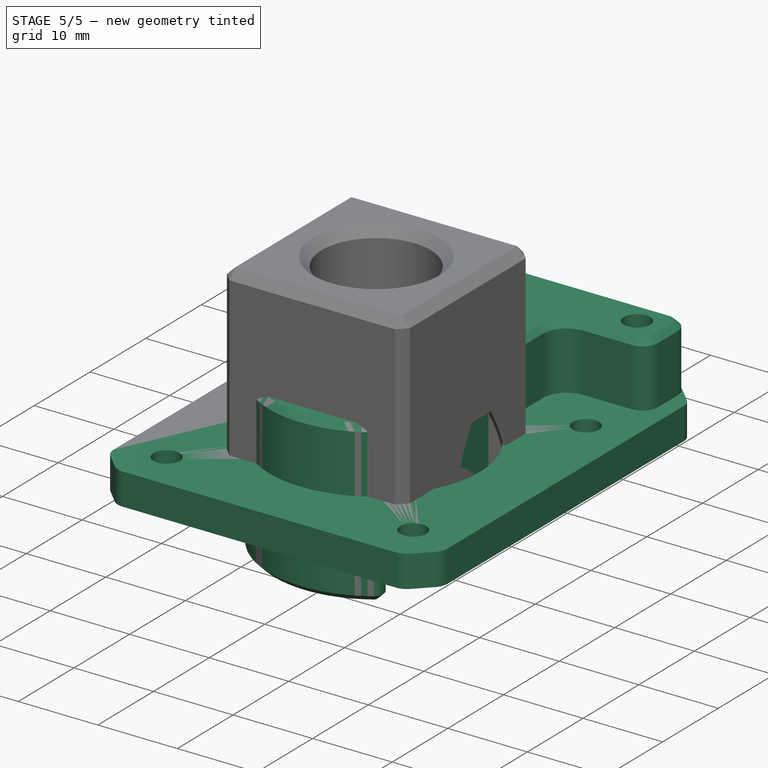
[diagram: stage 5 of 5 — iso view after this stage's code; geometry added in this stage tinted green]
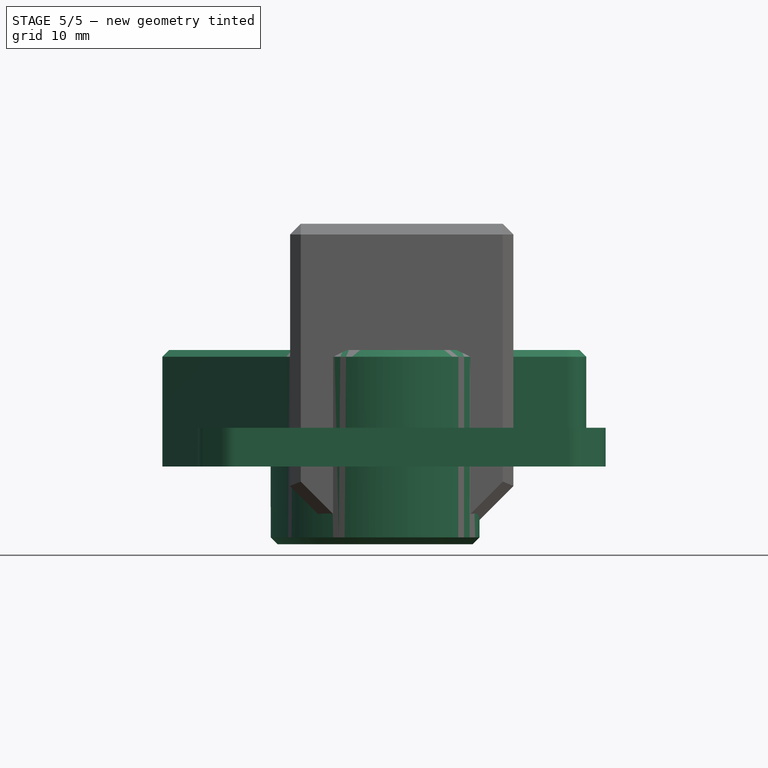
[diagram: stage 5 of 5 — front view after this stage's code; geometry added in this stage tinted green]
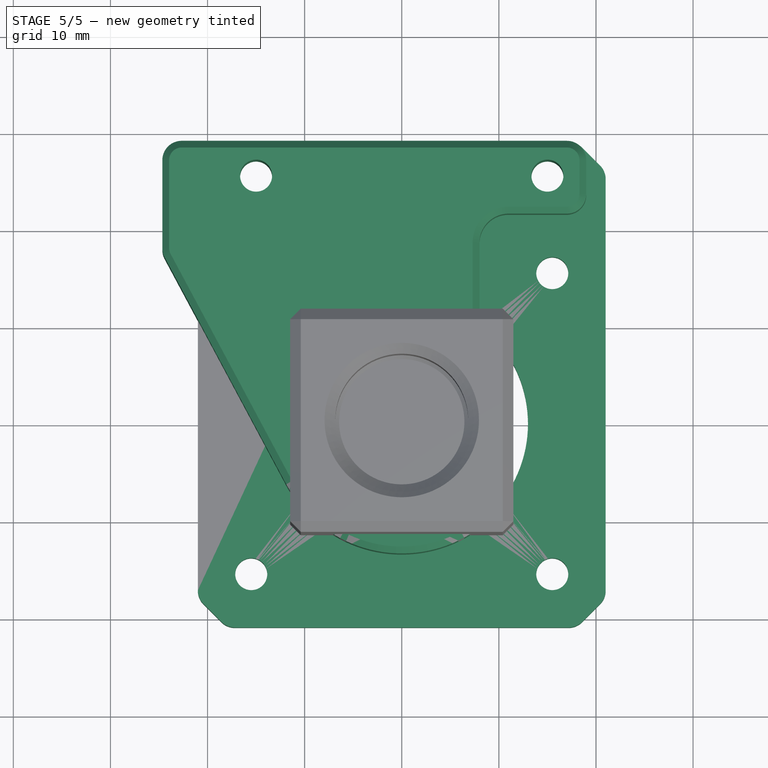
[diagram: stage 5 of 5 — top view after this stage's code; geometry added in this stage tinted green]
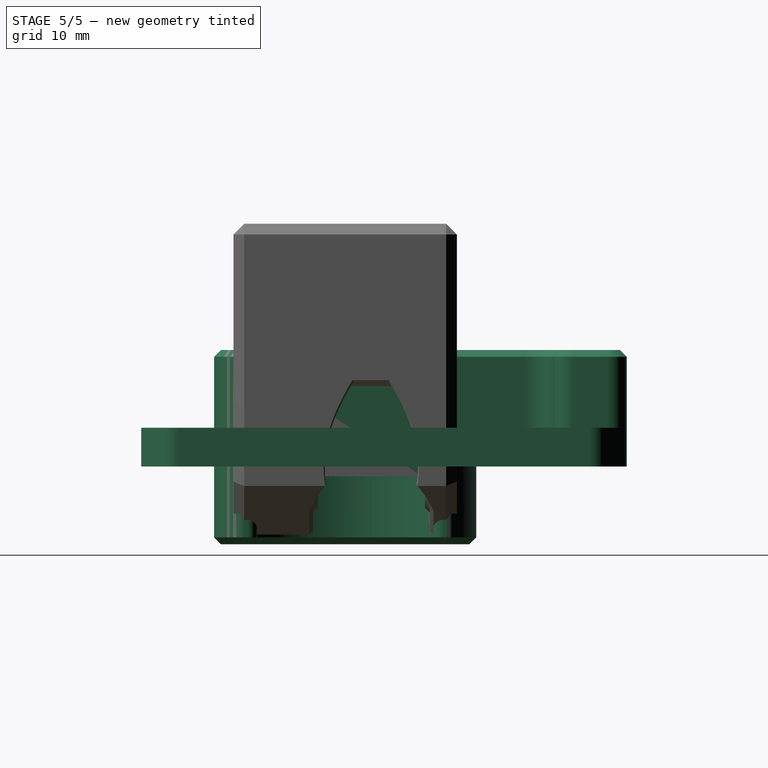
[diagram: stage 5 of 5 — right view after this stage's code; geometry added in this stage tinted green]
FEATURE [Sketcher::SketchObject] Sketch033
  FullyConstrained = true
  MapMode = 5
  Placement = pos=(0,-1.11e-14,50) rot=(0,0,1;3.14159rad)
  Support = -> [Chamfer008]
  sketch-geometry (4):
    g0: Circle CenterX=15 CenterY=4 CenterZ=0 NormalX=0 NormalY=0 NormalZ=1 AngleXU=0 Radius=1.4
    g1: Circle CenterX=-15 CenterY=4 CenterZ=0 NormalX=0 NormalY=0 NormalZ=1 AngleXU=0 Radius=1.4
    g2: Circle CenterX=-27 CenterY=4 CenterZ=0 NormalX=0 NormalY=0 NormalZ=1 AngleXU=0 Radius=1.4
    g3: Circle CenterX=-44 CenterY=4 CenterZ=0 NormalX=0 NormalY=0 NormalZ=1 AngleXU=0 Radius=1.4
  constraints (12):
    c: Horizontal(g3,g2)
    c: Horizontal(g2,g1)
    c: Equal(g0,g1)
    c: Equal(g0,g2)
    c: Equal(g0,g3)
    c: Diameter(g0) = 2.8
    c: DistanceY(g-1,g0) = 4
    c: DistanceX(g-2,g1) = -15
    c: DistanceX(g-2,g0) = 15
    c: DistanceX(g-2,g2) = -27
    c: DistanceX(g-2,g3) = -44
    c: Horizontal(g1,g0)
FEATURE [PartDesign::Hole] Hole003
  BaseFeature = -> Chamfer008
  CustomThreadClearance = 0
  Depth = 12
  DepthType = 0
  Diameter = 2.75
  DrillForDepth = false
  DrillPoint = 1
  DrillPointAngle = 118
  HoleCutCountersinkAngle = 90
  HoleCutCustomValues = false
  HoleCutDepth = 0
  HoleCutDiameter = 3.8
  HoleCutType = 2
  ModelThread = false
  Placement = pos=(0,0,0) rot=(1,0,0;1.5708rad)
  Profile = -> Sketch033
  Tapered = false
  TaperedAngle = 90
  ThreadClass = 0
  ThreadDepth = 12
  ThreadDepthType = 0
  ThreadDirection = 0
  ThreadFit = 0
  ThreadSize = 0
  ThreadType = 0
  Threaded = false
  UseCustomThreadClearance = false
FEATURE [PartDesign::SubShapeBinder] Binder004
  BindCopyOnChange = 0
  BindMode = 0
  ClaimChildren = false
  Context = -> Body011 [Binder004.]
  Fuse = false
  MakeFace = true
  OffsetFill = false
  OffsetIntersection = false
  OffsetJoinType = 0
  OffsetOpenResult = false
  PartialLoad = false
  Relative = true
  Support = -> [Body010[Hole003.Face47]]
  _Version = 2
FEATURE [Sketcher::SketchObject] Sketch026
  ExternalGeometry = -> [Binder004]
  FullyConstrained = true
  MapMode = 5
  Support = -> [XY_Plane017]
  sketch-geometry (24):
    g0: Circle CenterX=0 CenterY=0 CenterZ=0 NormalX=0 NormalY=0 NormalZ=1 AngleXU=0 Radius=13
    g1: LineSegment StartX=15.5 StartY=-15.5 StartZ=0 EndX=15.5 EndY=15.5 EndZ=0
    g2: LineSegment StartX=15.5 StartY=15.5 StartZ=0 EndX=-15.5 EndY=15.5 EndZ=0
    g3: LineSegment StartX=-15.5 StartY=15.5 StartZ=0 EndX=-15.5 EndY=-15.5 EndZ=0
    g4: LineSegment StartX=-15.5 StartY=-15.5 StartZ=0 EndX=15.5 EndY=-15.5 EndZ=0
    g5: GeomPoint X=0 Y=0 Z=0
    g6: Circle CenterX=-15.5 CenterY=15.5 CenterZ=0 NormalX=0 NormalY=0 NormalZ=1 AngleXU=0 Radius=1.65
    g7: Circle CenterX=15.5 CenterY=15.5 CenterZ=0 NormalX=0 NormalY=0 NormalZ=1 AngleXU=0 Radius=1.65
    g8: Circle CenterX=15.5 CenterY=-15.5 CenterZ=0 NormalX=0 NormalY=0 NormalZ=1 AngleXU=0 Radius=1.65
    g9: Circle CenterX=-15.5 CenterY=-15.5 CenterZ=0 NormalX=0 NormalY=0 NormalZ=1 AngleXU=0 Radius=1.65
    g10: ArcOfCircle CenterX=-4 CenterY=25.4 CenterZ=0 NormalX=0 NormalY=0 NormalZ=1 AngleXU=0 Radius=1.65 StartAngle=1.5708 EndAngle=4.71239
    g11: ArcOfCircle CenterX=-2 CenterY=25.4 CenterZ=0 NormalX=0 NormalY=0 NormalZ=1 AngleXU=0 Radius=1.65 StartAngle=4.71239 EndAngle=7.85398
    g12: LineSegment StartX=-4 StartY=23.75 StartZ=0 EndX=-2 EndY=23.75 EndZ=0
    g13: LineSegment StartX=-2 StartY=27.05 StartZ=0 EndX=-4 EndY=27.05 EndZ=0
    g14: ArcOfCircle CenterX=13 CenterY=25.4 CenterZ=0 NormalX=0 NormalY=0 NormalZ=1 AngleXU=0 Radius=1.65 StartAngle=1.5708 EndAngle=4.71239
    g15: ArcOfCircle CenterX=15 CenterY=25.4 CenterZ=0 NormalX=0 NormalY=0 NormalZ=1 AngleXU=0 Radius=1.65 StartAngle=4.71239 EndAngle=7.85398
    g16: LineSegment StartX=13 StartY=23.75 StartZ=0 EndX=15 EndY=23.75 EndZ=0
    g17: LineSegment StartX=15 StartY=27.05 StartZ=0 EndX=13 EndY=27.05 EndZ=0
    g18: LineSegment StartX=-21 StartY=-21 StartZ=0 EndX=-21 EndY=21 EndZ=0
    g19: LineSegment StartX=21 StartY=29 StartZ=0 EndX=21 EndY=-21 EndZ=0
    g20: LineSegment StartX=21 StartY=-21 StartZ=0 EndX=-21 EndY=-21 EndZ=0
    g21: LineSegment StartX=21 StartY=29 StartZ=0 EndX=-10 EndY=29 EndZ=0
    g22: LineSegment StartX=-10 StartY=29 StartZ=0 EndX=-10 EndY=21 EndZ=0
    g23: LineSegment StartX=-10 StartY=21 StartZ=0 EndX=-21 EndY=21 EndZ=0
  constraints (58):
    c: Coincident(g0,g-1)
    c: Diameter(g0) = 26
    c: Coincident(g1,g2)
    c: Coincident(g2,g3)
    c: Coincident(g3,g4)
    c: Coincident(g4,g1)
    c: Horizontal(g2)
    c: Horizontal(g4)
    c: Vertical(g1)
    c: Vertical(g3)
    c: Symmetric(g2,g1,g5)
    c: Coincident(g5,g0)
    c: Equal(g2,g3)
    c: Distance(g2) = 31
    c: Coincident(g6,g2)
    c: Coincident(g7,g1)
    c: Coincident(g8,g1)
    c: Coincident(g9,g3)
    c: Equal(g6,g9)
    c: Equal(g6,g8)
    c: Equal(g6,g7)
    c: Diameter(g6) = 3.3
    c: Tangent(g10,g12) = -1.5708
    c: Tangent(g12,g11) = -1.5708
    c: Tangent(g11,g13) = -1.5708
    c: Tangent(g13,g10) = -1.5708
    c: Equal(g10,g11)
    c: Horizontal(g12)
    c: Tangent(g14,g16) = -1.5708
    c: Tangent(g16,g15) = -1.5708
    c: Tangent(g15,g17) = -1.5708
    c: Tangent(g17,g14) = -1.5708
    c: Equal(g14,g15)
    c: Horizontal(g16)
    c: Equal(g15,g11)
    c: Diameter(g15) = 3.3
    c: Horizontal(g11,g14)
    c: Vertical(g19)
    c: Coincident(g19,g20)
    c: Coincident(g20,g18)
    c: DistanceY(g-1,g18) = 21
    c: DistanceX(g-2,g18) = -21
    c: Symmetric(g18,g18,g-1)
    c: Symmetric(g19,g18,g-2)
    c: Coincident(g19,g21)
    c: Horizontal(g21)
    c: Coincident(g21,g22)
    c: Vertical(g22)
    c: Coincident(g22,g23)
    c: Coincident(g23,g18)
    c: Horizontal(g23)
    c: DistanceY(g-1,g19) = 29
    c: Distance(g13) = 2
    c: Equal(g17,g13)
    c: Horizontal(g14,g-4)
    c: Distance(g15,g-4) = 1
    c: Distance(g11,g-3) = 1
    c: DistanceX(g-2,g21) = -10
FEATURE [PartDesign::Pad] Pad013
  Direction = (0,0,1)
  Length = 4
  Length2 = 10
  Profile = -> Sketch026
  ReferenceAxis = -> Sketch026 [N_Axis]
  Type = 0
FEATURE [PartDesign::Chamfer] Chamfer009
  Angle = 45
  Base = -> Pad013 [Edge14,Edge11,Edge1,Edge2,Edge5,Edge8]
  BaseFeature = -> Pad013
  ChamferType = 0
  FlipDirection = false
  Size = 3
  Size2 = 1
  SupportTransform = false
  UseAllEdges = false
FEATURE [PartDesign::Fillet] Fillet002
  Base = -> Chamfer009 [Edge2,Edge29,Edge3,Edge31,Edge56,Edge58,Edge62,Edge60,Edge61,Edge59,Edge57,Edge55]
  BaseFeature = -> Chamfer009
  Radius = 2
  SupportTransform = false
  UseAllEdges = false
FEATURE [PartDesign::Body] Body011  label="Motor plate - Nema17"
  Group = -> [Sketch026,Pad013,Binder004,Chamfer009,Fillet002]
  Origin = -> Origin017
  Placement = pos=(30,-32,50) rot=(0,0,1;0rad)
  Tip = -> Fillet002
  expr: .Placement.Base.x = <<Nema17 stepper>>.Placement.Base.x
  expr: .Placement.Base.y = <<Moving parts>>.Placement.Base.y
  expr: .Placement.Base.z = Sketch025.Constraints.topheigth
FEATURE [PartDesign::SubShapeBinder] Binder005
  BindCopyOnChange = 0
  BindMode = 0
  ClaimChildren = false
  Context = -> Body012 [Binder005.]
  Fuse = false
  MakeFace = true
  OffsetFill = false
  OffsetIntersection = false
  OffsetJoinType = 0
  OffsetOpenResult = false
  PartialLoad = false
  Relative = true
  Support = -> [Body010[Hole003.Face47]]
  _Version = 2
FEATURE [Sketcher::SketchObject] Sketch027
  ExternalGeometry = -> [Binder005]
  FullyConstrained = true
  MapMode = 5
  Support = -> [XY_Plane018]
  sketch-geometry (10):
    g0: ArcOfCircle CenterX=0 CenterY=0 CenterZ=0 NormalX=0 NormalY=0 NormalZ=1 AngleXU=0 Radius=13.5 StartAngle=3.63327 EndAngle=5.34666
    g1: LineSegment StartX=19 StartY=29 StartZ=0 EndX=-24.6571 EndY=29 EndZ=0
    g2: LineSegment StartX=-24.6571 StartY=29 StartZ=0 EndX=-24.6571 EndY=17.446 EndZ=0
    g3: LineSegment StartX=-24.6571 StartY=17.446 StartZ=0 EndX=-11.9008 EndY=-6.37339 EndZ=0
    g4: Circle CenterX=15 CenterY=25.4 CenterZ=0 NormalX=0 NormalY=0 NormalZ=1 AngleXU=0 Radius=1.65
    g5: Circle CenterX=-15 CenterY=25.4 CenterZ=0 NormalX=0 NormalY=0 NormalZ=1 AngleXU=0 Radius=1.65
    g6: Circle CenterX=0 CenterY=0 CenterZ=0 NormalX=0 NormalY=0 NormalZ=1 AngleXU=0 Radius=4.5
    g7: LineSegment StartX=8 StartY=-10.8743 StartZ=0 EndX=8 EndY=21.5 EndZ=0
    g8: LineSegment StartX=19 StartY=21.5 StartZ=0 EndX=19 EndY=29 EndZ=0
    g9: LineSegment StartX=8 StartY=21.5 StartZ=0 EndX=19 EndY=21.5 EndZ=0
  constraints (26):
    c: Coincident(g0,g-1)
    c: Horizontal(g1)
    c: Coincident(g1,g2)
    c: Vertical(g2)
    c: Coincident(g2,g3)
    c: Tangent(g0,g3) = -1.5708
    c: Diameter(g0) = 27
    c: Equal(g5,g4)
    c: Diameter(g5) = 3.3
    c: Coincident(g6,g0)
    c: Diameter(g6) = 9
    c: Coincident(g7,g0)
    c: Vertical(g7)
    c: Vertical(g8)
    c: Coincident(g9,g7)
    c: Coincident(g9,g8)
    c: Coincident(g1,g8)
    c: Horizontal(g9)
    c: DistanceY(g-1,g1) = 29
    c: DistanceY(g-1,g8) = 21.5
    c: DistanceX(g-2,g1) = 19
    c: Coincident(g4,g-4)
    c: Coincident(g5,g-3)
    c: DistanceX(g2) = -24.6571
    c: DistanceY(g2) = 17.446
    c: DistanceX(g-2,g7) = 8
FEATURE [PartDesign::Pad] Pad014
  Direction = (0,0,1)
  Length = 12
  Length2 = 10
  Profile = -> Sketch027
  ReferenceAxis = -> Sketch027 [N_Axis]
  Type = 0
FEATURE [Sketcher::SketchObject] Sketch028
  ExternalGeometry = -> [Pad014]
  FullyConstrained = true
  MapMode = 5
  Placement = pos=(0,0,0) rot=(1,0,0;3.14159rad)
  Support = -> [Pad014]
  sketch-geometry (3):
    g0: ArcOfCircle CenterX=0 CenterY=0 CenterZ=0 NormalX=0 NormalY=0 NormalZ=1 AngleXU=0 Radius=13.5 StartAngle=0.936523 EndAngle=5.34666
    g1: LineSegment StartX=8 StartY=-10.8743 StartZ=0 EndX=8 EndY=10.8743 EndZ=0
    g2: Circle CenterX=0 CenterY=0 CenterZ=0 NormalX=0 NormalY=0 NormalZ=1 AngleXU=0 Radius=4.5
  constraints (7):
    c: Coincident(g0,g-5)
    c: Coincident(g1,g0)
    c: Coincident(g1,g0)
    c: Coincident(g2,g0)
    c: Coincident(g0,g-4)
    c: PointOnObject(g0,g-4)
    c: Equal(g2,g-5)
FEATURE [PartDesign::Pad] Pad015
  BaseFeature = -> Pad014
  Direction = (0,0,-1)
  Length = 8
  Length2 = 10
  Profile = -> Sketch028
  ReferenceAxis = -> Sketch028 [N_Axis]
  Refine = true
  Type = 0
FEATURE [Sketcher::SketchObject] Sketch029
  FullyConstrained = true
  MapMode = 5
  Placement = pos=(0,0,-8) rot=(1,0,0;3.14159rad)
  Support = -> [Pad015]
  sketch-geometry (1):
    g0: Circle CenterX=0 CenterY=0 CenterZ=0 NormalX=0 NormalY=0 NormalZ=1 AngleXU=0 Radius=11.25
  constraints (2):
    c: Coincident(g0,g-1)
    c: Diameter(g0) = 22.5
FEATURE [PartDesign::Pocket] Pocket006
  BaseFeature = -> Pad015
  Direction = (0,0,1)
  Length = 7
  Length2 = 5
  Profile = -> Sketch029
  ReferenceAxis = -> Sketch029 [N_Axis]
  Type = 0
FEATURE [PartDesign::Fillet] Fillet001
  Base = -> Pocket006 [Edge11]
  BaseFeature = -> Pocket006
  Radius = 3
  SupportTransform = false
  UseAllEdges = false
FEATURE [PartDesign::Fillet] Fillet003
  Base = -> Fillet001 [Edge3,Edge7,Edge10,Edge6]
  BaseFeature = -> Fillet001
  Radius = 1
  SupportTransform = false
  UseAllEdges = false
FEATURE [PartDesign::Fillet] Fillet004
  Base = -> Fillet003 [Edge51,Edge53,Edge52,Edge54]
  BaseFeature = -> Fillet003
  Radius = 2
  SupportTransform = false
  UseAllEdges = false
FEATURE [PartDesign::Chamfer] Chamfer010
  Angle = 45
  Base = -> Fillet004 [Edge12,Edge46]
  BaseFeature = -> Fillet004
  ChamferType = 0
  FlipDirection = false
  Size = 0.7
  Size2 = 1
  SupportTransform = false
  UseAllEdges = false
FEATURE [PartDesign::Body] Body012  label="Top bearing holder001"
  Group = -> [Sketch027,Pad014,Sketch028,Pad015,Sketch029,Pocket006,Fillet001,Fillet003,Fillet004,Chamfer010,Binder005]
  Origin = -> Origin018
  Placement = pos=(0,-32,50) rot=(0,0,1;0rad)
  Tip = -> Chamfer010
  expr: .Placement.Base.y = <<Moving parts>>.Placement.Base.y
  expr: .Placement.Base.z = Sketch025.Constraints.topheigth
FEATURE [Sketcher::SketchObject] Sketch034
  AttachmentOffset = pos=(0,0,35.4) rot=(0,0,1;0rad)
  FullyConstrained = false
  MapMode = 5
  Placement = pos=(0,-35.4,-7.9e-15) rot=(1,0,0;1.5708rad)
  Support = -> [XZ_Plane]
  expr: .AttachmentOffset.Base.z = -<<Moving parts>>.Placement.Base.y + -2.6 mm + 6 mm
  sketch-geometry (4):
    g0: LineSegment StartX=-23.6705 StartY=8.11551 StartZ=0 EndX=27.4008 EndY=8.11551 EndZ=0
    g1: LineSegment StartX=27.4008 StartY=8.11551 StartZ=0 EndX=27.4008 EndY=-38.0763 EndZ=0
    g2: LineSegment StartX=27.4008 StartY=-38.0763 StartZ=0 EndX=-23.6705 EndY=-38.0763 EndZ=0
    g3: LineSegment StartX=-23.6705 StartY=-38.0763 StartZ=0 EndX=-23.6705 EndY=8.11551 EndZ=0
  constraints (8):
    c: Coincident(g0,g1)
    c: Coincident(g1,g2)
    c: Coincident(g2,g3)
    c: Coincident(g3,g0)
    c: Horizontal(g0)
    c: Horizontal(g2)
    c: Vertical(g1)
    c: Vertical(g3)
FEATURE [PartDesign::Pocket] Pocket009
  BaseFeature = -> Hole003
  Direction = (0,1,2e-16)
  Length = 5
  Length2 = 5
  Placement = pos=(0,0,0) rot=(1,0,0;1.5708rad)
  Profile = -> Sketch034
  ReferenceAxis = -> Sketch034 [N_Axis]
  Reversed = true
  Type = 1
FEATURE [PartDesign::Fillet] Fillet005
  Base = -> Pocket009 [Edge101,Edge99,Edge34,Edge106,Edge45,Edge108]
  BaseFeature = -> Pocket009
  Placement = pos=(0,0,0) rot=(1,0,0;1.5708rad)
  Radius = 0.7
  SupportTransform = false
  UseAllEdges = false
FEATURE [PartDesign::Chamfer] Chamfer011
  Angle = 45
  Base = -> Fillet005 [Edge51,Edge10]
  BaseFeature = -> Fillet005
  ChamferType = 0
  FlipDirection = false
  Placement = pos=(0,0,0) rot=(1,0,0;1.5708rad)
  Size = 0.69
  Size2 = 1
  SupportTransform = false
  UseAllEdges = false
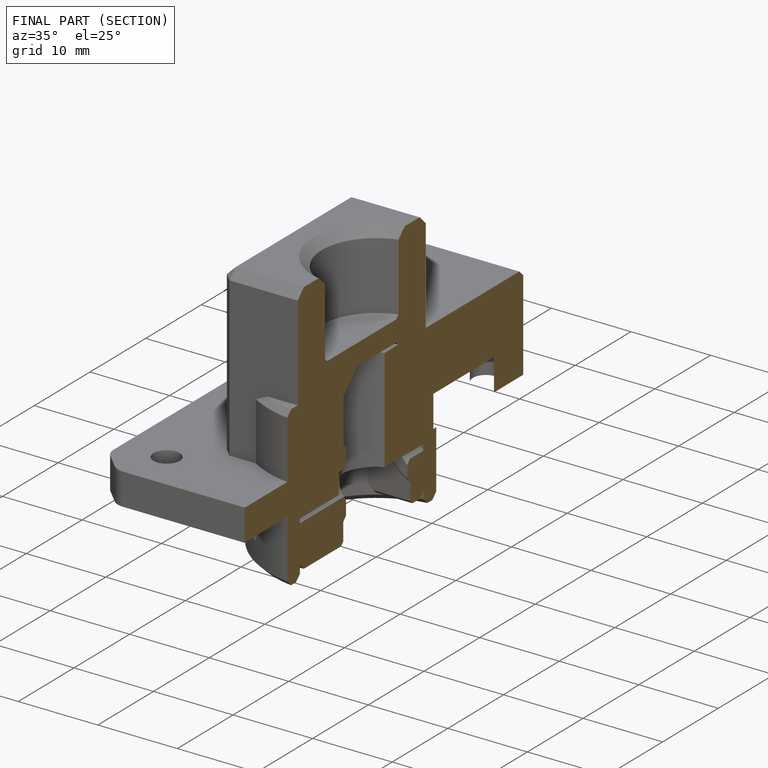
[diagram: finished part — half-section view (interior)]
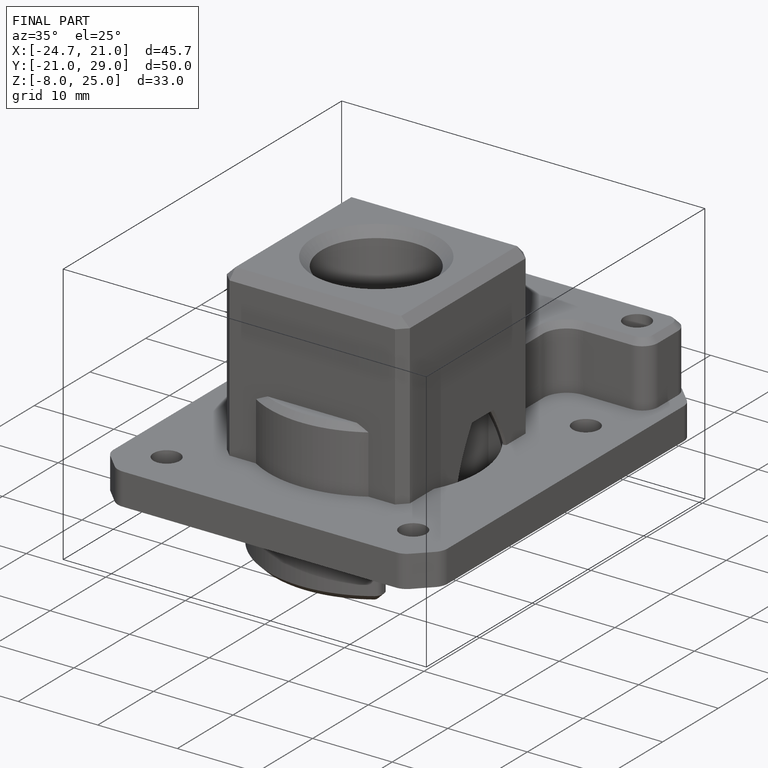
[diagram: finished part — iso view with bounding-box wireframe]
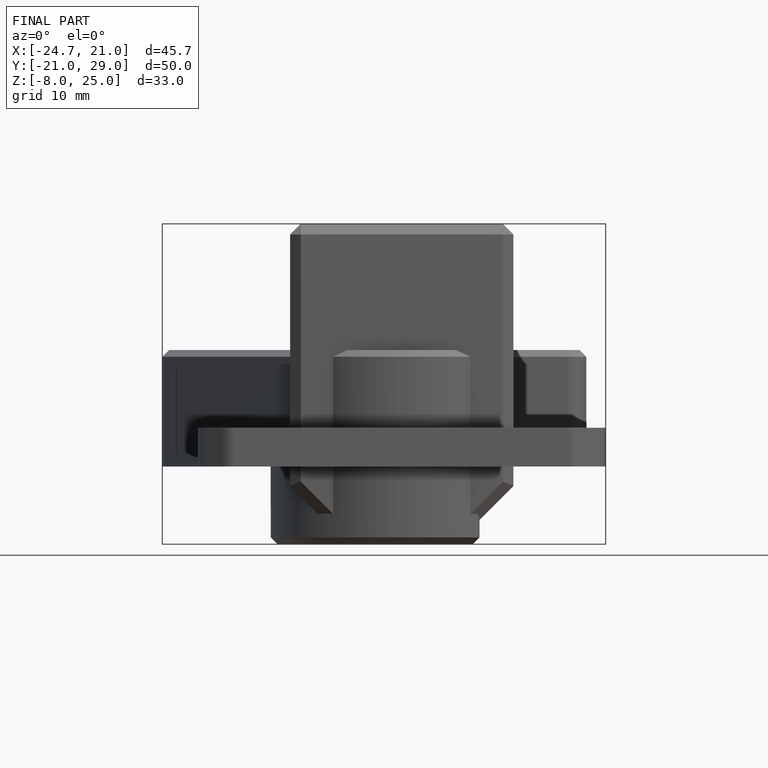
[diagram: finished part — front view with bounding-box wireframe]
